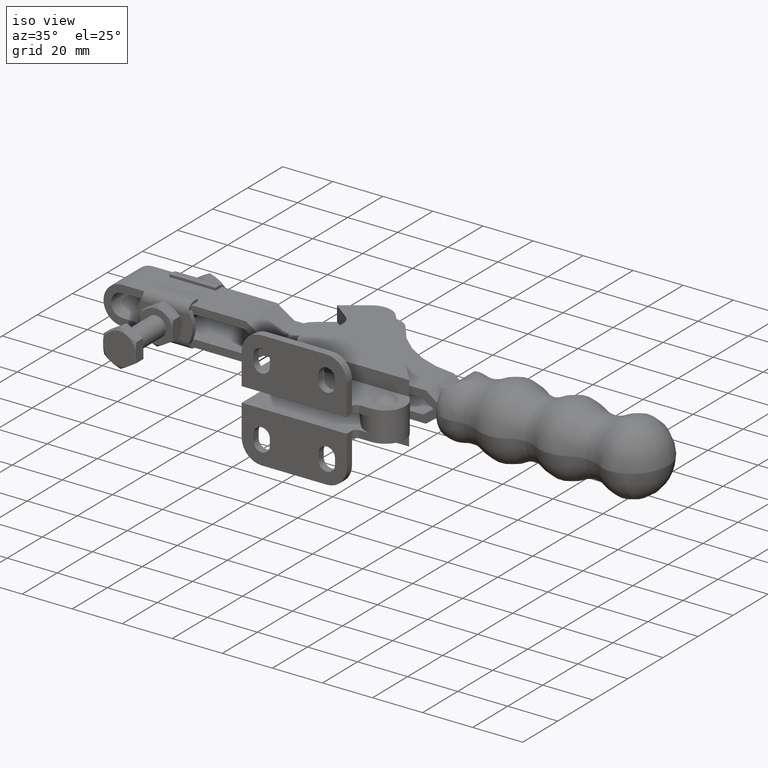
[diagram: clean part render]
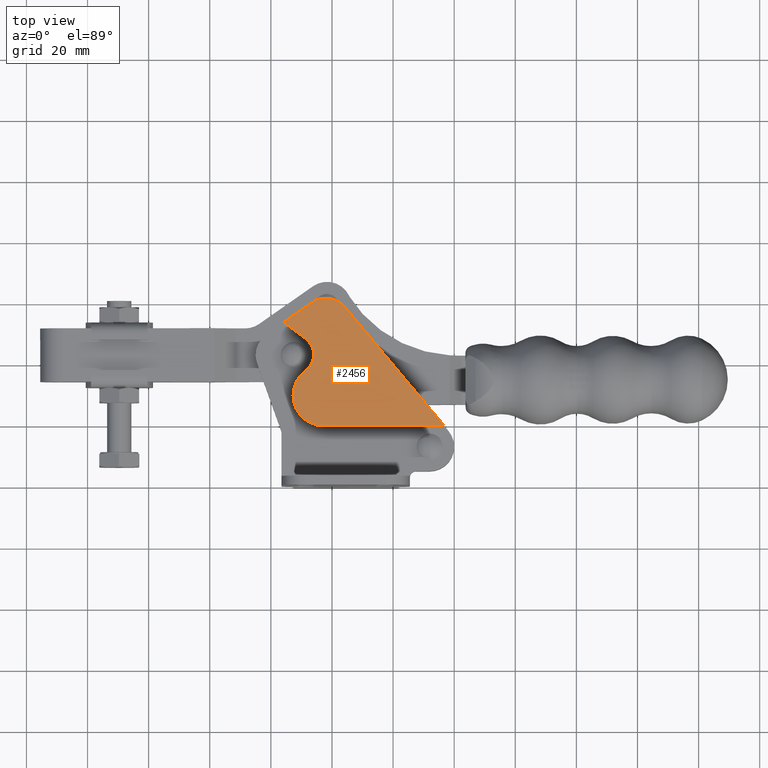
[diagram: tour spotlight — one face highlighted and labeled with its STEP entity id]
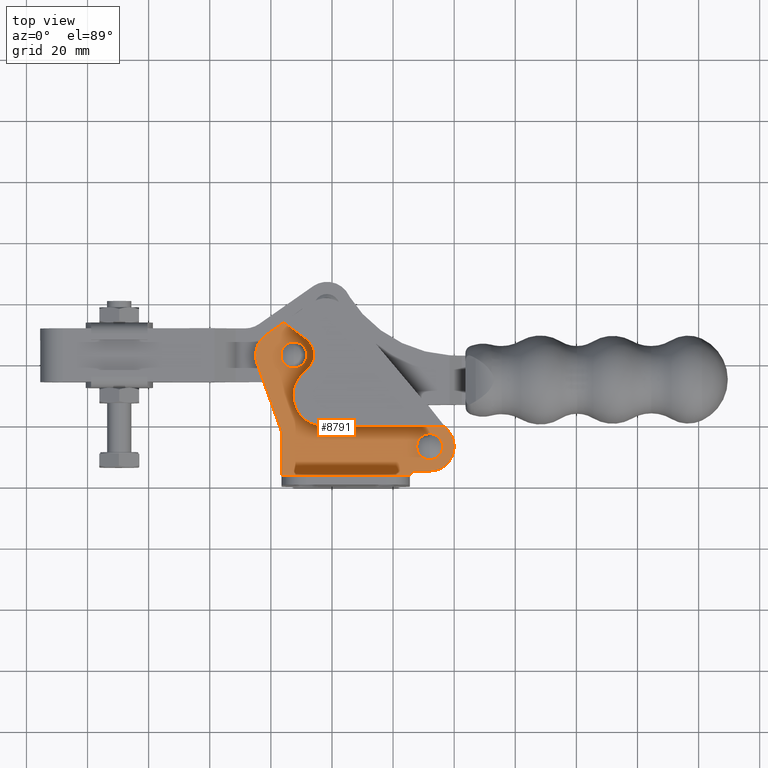
[diagram: tour spotlight — one face highlighted and labeled with its STEP entity id]
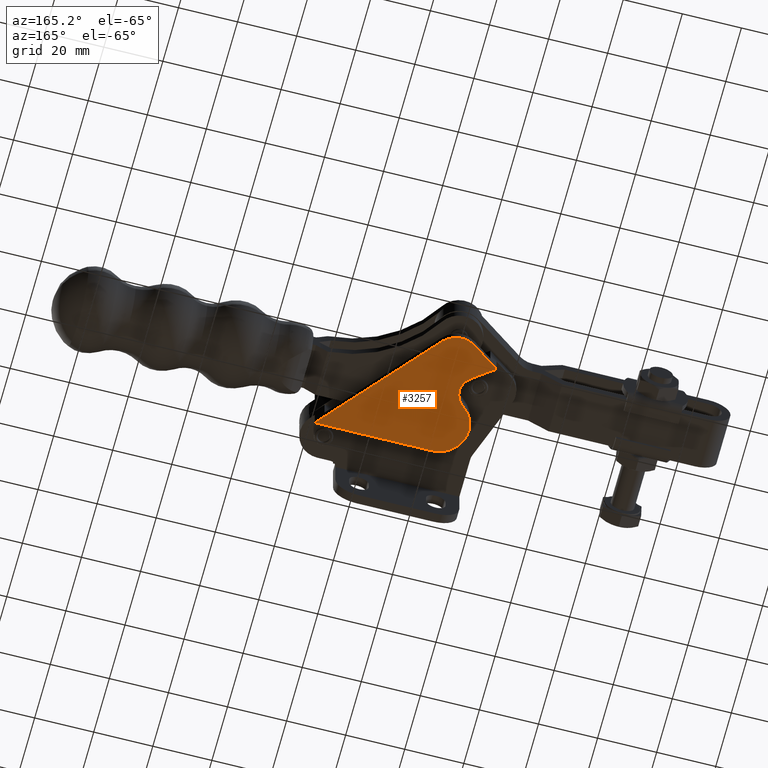
[diagram: tour spotlight — one face highlighted and labeled with its STEP entity id]
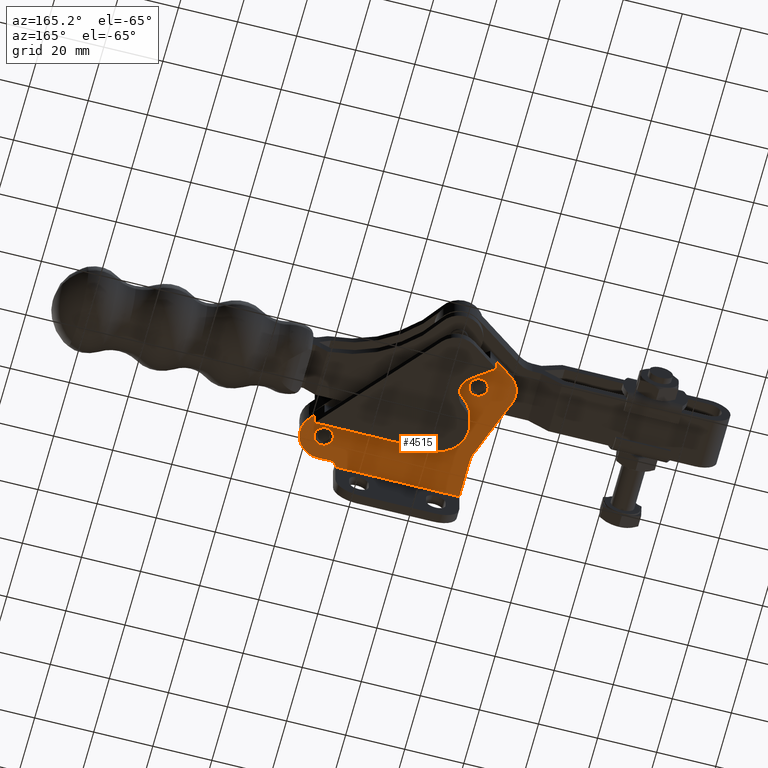
[diagram: tour spotlight — one face highlighted and labeled with its STEP entity id]
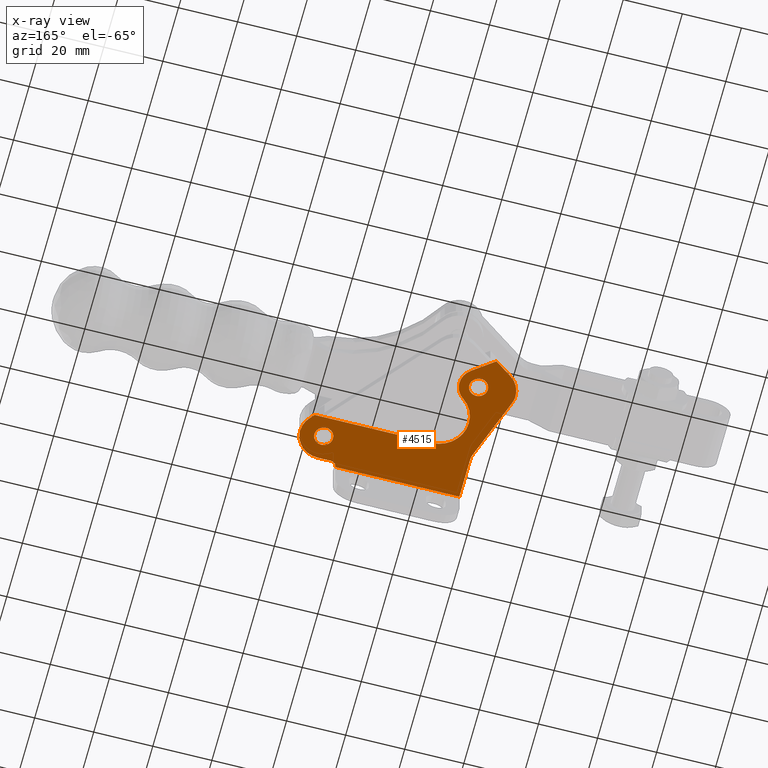
[diagram: x-ray of the same camera — body ghosted, this tour face saturated]
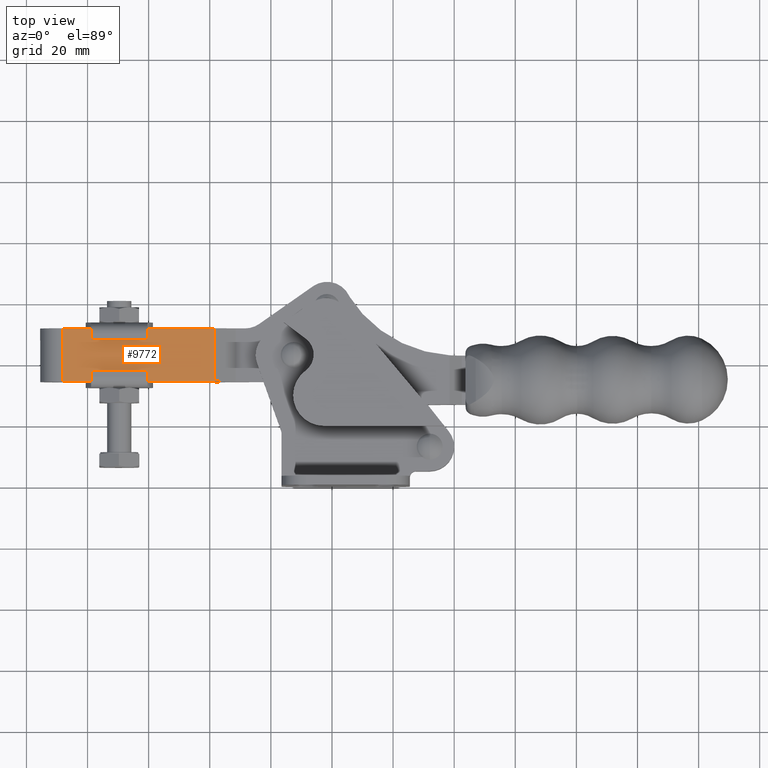
[diagram: tour spotlight — one face highlighted and labeled with its STEP entity id]
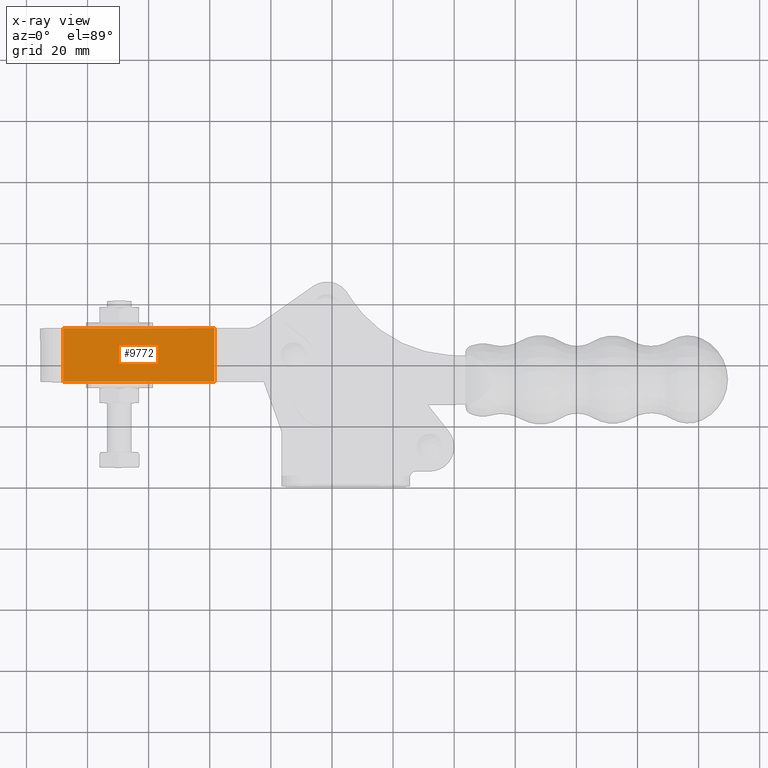
[diagram: x-ray of the same camera — body ghosted, this tour face saturated]
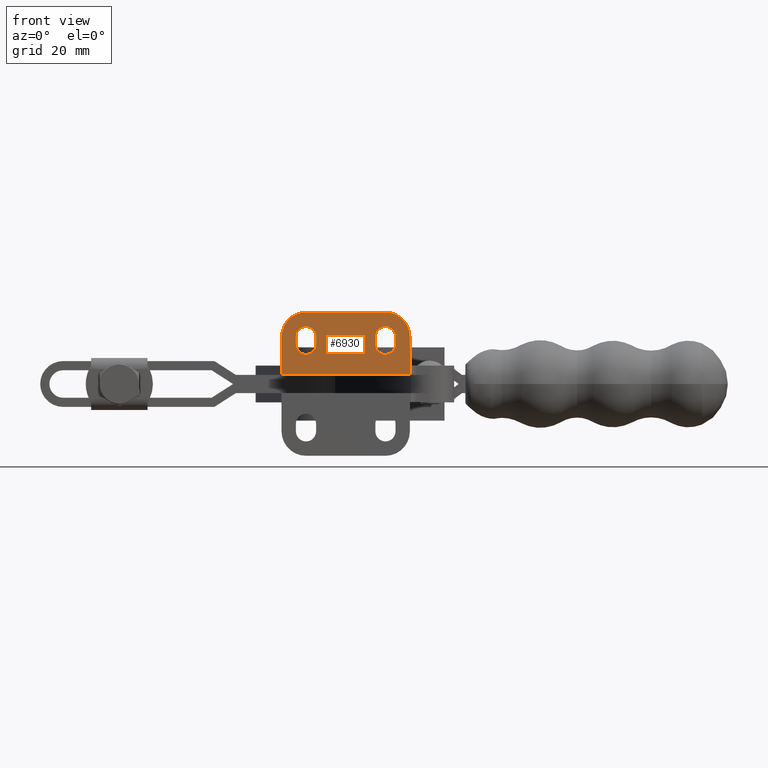
[diagram: tour spotlight — one face highlighted and labeled with its STEP entity id]
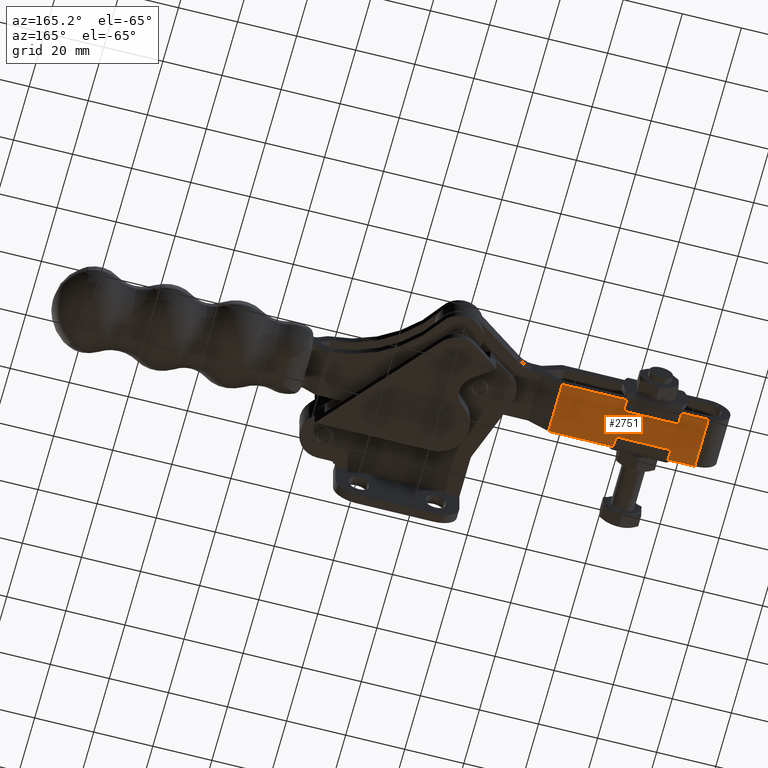
[diagram: tour spotlight — one face highlighted and labeled with its STEP entity id]
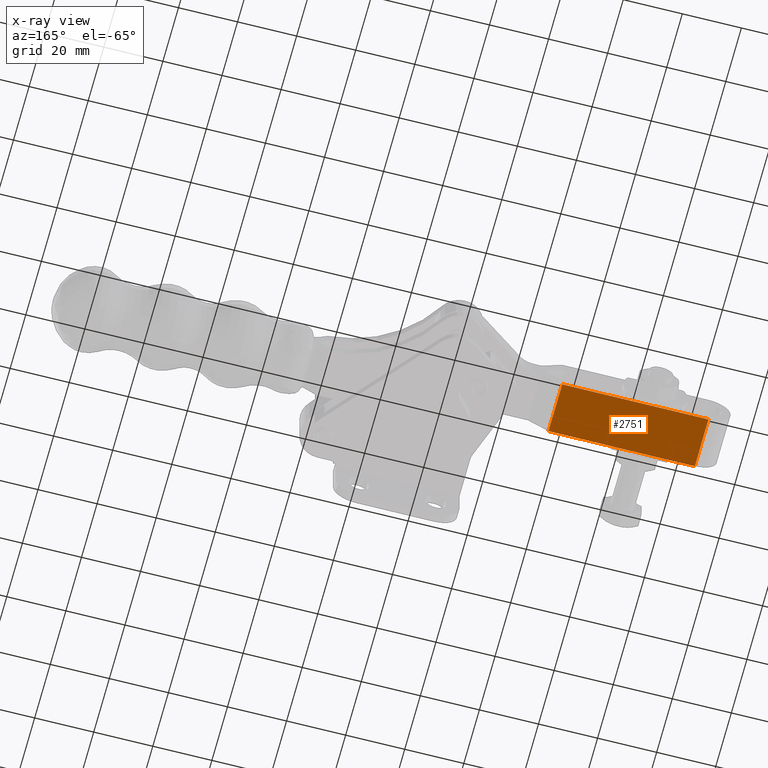
[diagram: x-ray of the same camera — body ghosted, this tour face saturated]
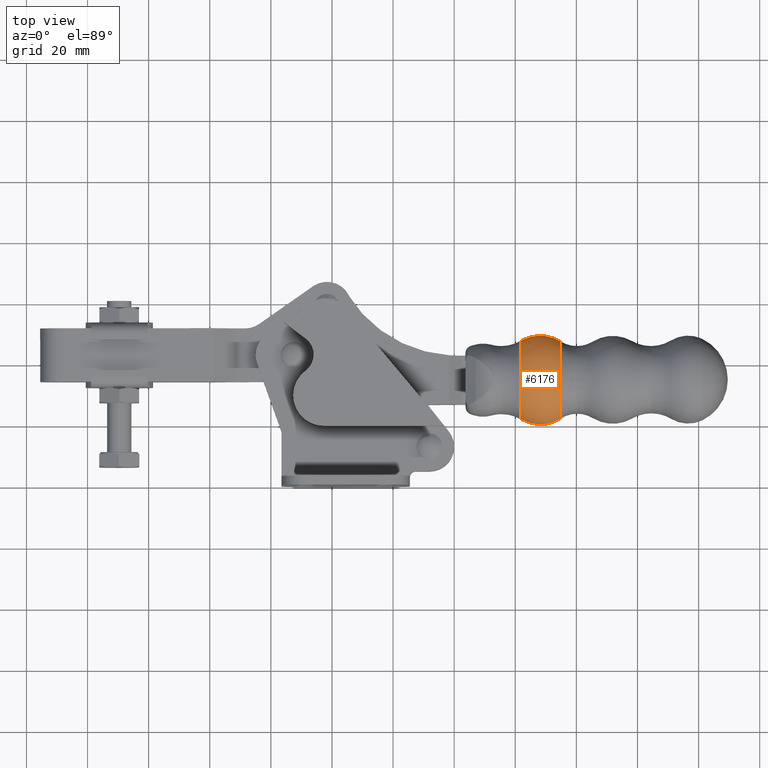
[diagram: tour spotlight — one face highlighted and labeled with its STEP entity id]
A machine part: a face-by-face anatomy tour. The part has 332 B-rep faces; the first image is the clean iso view, then the 8 largest visible faces are spotlighted one at a time (largest first), each with its STEP entity span.

Face 1 — top view, entity #2456. In plain terms, the highlighted planar face has unit normal (0, 0, 1).
Definition (entity closure, byte-faithful):
#92 = CARTESIAN_POINT ( 'NONE',  ( -48.58378610130778700, 48.18779998647656300, 9.000000000000000000 ) ) ;
#303 = DIRECTION ( 'NONE',  ( 0.0000000000000000000, 0.0000000000000000000, 1.000000000000000000 ) ) ;
#481 = AXIS2_PLACEMENT_3D ( 'NONE', #3767, #1152, #5874 ) ;
#557 = LINE ( 'NONE', #12066, #5366 ) ;
#584 = EDGE_CURVE ( 'NONE', #6053, #3826, #6062, .T. ) ;
#585 = LINE ( 'NONE', #1023, #7936 ) ;
#599 = DIRECTION ( 'NONE',  ( 1.000000000000000000, 3.508430769221403400E-016, -0.0000000000000000000 ) ) ;
#1023 = CARTESIAN_POINT ( 'NONE',  ( -35.87066996450977300, 58.64510652004862800, 9.000000000000000000 ) ) ;
#1115 = DIRECTION ( 'NONE',  ( 0.0000000000000000000, 0.0000000000000000000, 1.000000000000000000 ) ) ;
#1152 = DIRECTION ( 'NONE',  ( 0.0000000000000000000, 0.0000000000000000000, 1.000000000000000000 ) ) ;
#1410 = LINE ( 'NONE', #11649, #1699 ) ;
#1541 = ORIENTED_EDGE ( 'NONE', *, *, #3298, .T. ) ;
#1699 = VECTOR ( 'NONE', #10685, 1000.000000000000000 ) ;
#1833 = EDGE_CURVE ( 'NONE', #5587, #5710, #6848, .T. ) ;
#2066 = AXIS2_PLACEMENT_3D ( 'NONE', #2387, #3342, #7350 ) ;
#2250 = CARTESIAN_POINT ( 'NONE',  ( -42.73475550741349600, 19.69999999999998900, 9.000000000000000000 ) ) ;
#2387 = CARTESIAN_POINT ( 'NONE',  ( -52.50000000000059000, 42.99999999999998600, 9.000000000000000000 ) ) ;
#2444 = CIRCLE ( 'NONE', #4019, 8.002550080231083400 ) ;
#2456 = ADVANCED_FACE ( 'NONE', ( #11126 ), #5955, .T. ) ;
#2576 = EDGE_CURVE ( 'NONE', #8596, #6053, #1410, .T. ) ;
#2715 = VECTOR ( 'NONE', #2745, 1000.000000000000200 ) ;
#2745 = DIRECTION ( 'NONE',  ( -0.8191520442889974600, -0.5735764363510378300, -0.0000000000000000000 ) ) ;
#3046 = CARTESIAN_POINT ( 'NONE',  ( -52.73475550741350300, 29.69999999999999600, 9.000000000000000000 ) ) ;
#3298 = EDGE_CURVE ( 'NONE', #11305, #8596, #10338, .T. ) ;
#3342 = DIRECTION ( 'NONE',  ( -0.0000000000000000000, -0.0000000000000000000, -1.000000000000000000 ) ) ;
#3544 = CIRCLE ( 'NONE', #8498, 10.00000000000000200 ) ;
#3767 = CARTESIAN_POINT ( 'NONE',  ( -52.50000000000059000, 42.99999999999998600, 9.000000000000000000 ) ) ;
#3826 = VERTEX_POINT ( 'NONE', #11351 ) ;
#3868 = VERTEX_POINT ( 'NONE', #8556 ) ;
#3949 = DIRECTION ( 'NONE',  ( -0.6429333735452300600, 0.7659221090827379500, -0.0000000000000000000 ) ) ;
#3971 = EDGE_CURVE ( 'NONE', #7314, #3868, #585, .T. ) ;
#4019 = AXIS2_PLACEMENT_3D ( 'NONE', #6876, #1115, #7806 ) ;
#4710 = DIRECTION ( 'NONE',  ( 0.0000000000000000000, 0.0000000000000000000, 1.000000000000000000 ) ) ;
#4805 = ORIENTED_EDGE ( 'NONE', *, *, #5261, .T. ) ;
#5175 = ORIENTED_EDGE ( 'NONE', *, *, #2576, .T. ) ;
#5261 = EDGE_CURVE ( 'NONE', #5710, #7314, #557, .T. ) ;
#5366 = VECTOR ( 'NONE', #599, 1000.000000000000000 ) ;
#5587 = VERTEX_POINT ( 'NONE', #3046 ) ;
#5710 = VERTEX_POINT ( 'NONE', #2250 ) ;
#5874 = DIRECTION ( 'NONE',  ( 1.000000000000000000, 0.0000000000000000000, -0.0000000000000000000 ) ) ;
#5955 = PLANE ( 'NONE',  #481 ) ;
#6053 = VERTEX_POINT ( 'NONE', #92 ) ;
#6062 = CIRCLE ( 'NONE', #2066, 6.500000000000075500 ) ;
#6087 = CARTESIAN_POINT ( 'NONE',  ( -42.73475550741349600, 29.69999999999999600, 9.000000000000000000 ) ) ;
#6340 = CARTESIAN_POINT ( 'NONE',  ( -3.179214239331880500, 19.70000000000000300, 9.000000000000000000 ) ) ;
#6848 = CIRCLE ( 'NONE', #10409, 10.00000000000000200 ) ;
#6876 = CARTESIAN_POINT ( 'NONE',  ( -42.00000000000059000, 53.50000000000100200, 9.000000000000000000 ) ) ;
#6975 = ORIENTED_EDGE ( 'NONE', *, *, #7983, .T. ) ;
#7032 = DIRECTION ( 'NONE',  ( 1.000000000000000000, 0.0000000000000000000, 0.0000000000000000000 ) ) ;
#7314 = VERTEX_POINT ( 'NONE', #6340 ) ;
#7350 = DIRECTION ( 'NONE',  ( 1.000000000000000000, 0.0000000000000000000, 0.0000000000000000000 ) ) ;
#7806 = DIRECTION ( 'NONE',  ( 1.000000000000000000, 0.0000000000000000000, 0.0000000000000000000 ) ) ;
#7868 = ORIENTED_EDGE ( 'NONE', *, *, #1833, .T. ) ;
#7936 = VECTOR ( 'NONE', #3949, 1000.000000000000100 ) ;
#7974 = CARTESIAN_POINT ( 'NONE',  ( -46.59007415674025800, 60.05530525774738500, 9.000000000000000000 ) ) ;
#7983 = EDGE_CURVE ( 'NONE', #3826, #5587, #3544, .T. ) ;
#8002 = CARTESIAN_POINT ( 'NONE',  ( -55.78021040497713300, 53.62030257955775900, 9.000000000000000000 ) ) ;
#8498 = AXIS2_PLACEMENT_3D ( 'NONE', #6087, #303, #7032 ) ;
#8556 = CARTESIAN_POINT ( 'NONE',  ( -35.87066996450977300, 58.64510652004862800, 9.000000000000000000 ) ) ;
#8596 = VERTEX_POINT ( 'NONE', #8002 ) ;
#9055 = EDGE_LOOP ( 'NONE', ( #11949, #6975, #7868, #4805, #10092, #9394, #1541, #5175 ) ) ;
#9394 = ORIENTED_EDGE ( 'NONE', *, *, #9482, .T. ) ;
#9482 = EDGE_CURVE ( 'NONE', #3868, #11305, #2444, .T. ) ;
#10092 = ORIENTED_EDGE ( 'NONE', *, *, #3971, .T. ) ;
#10338 = LINE ( 'NONE', #10396, #2715 ) ;
#10396 = CARTESIAN_POINT ( 'NONE',  ( -55.78021040497713300, 53.62030257955775900, 9.000000000000000000 ) ) ;
#10409 = AXIS2_PLACEMENT_3D ( 'NONE', #10416, #4710, #11384 ) ;
#10416 = CARTESIAN_POINT ( 'NONE',  ( -42.73475550741349600, 29.69999999999999600, 9.000000000000000000 ) ) ;
#10685 = DIRECTION ( 'NONE',  ( 0.7981230748425401900, -0.6024944459527316100, -0.0000000000000000000 ) ) ;
#11126 = FACE_OUTER_BOUND ( 'NONE', #9055, .T. ) ;
#11305 = VERTEX_POINT ( 'NONE', #7974 ) ;
#11351 = CARTESIAN_POINT ( 'NONE',  ( -48.65308550292081000, 37.76060606060601500, 9.000000000000000000 ) ) ;
#11384 = DIRECTION ( 'NONE',  ( 1.000000000000000000, 0.0000000000000000000, 0.0000000000000000000 ) ) ;
#11649 = CARTESIAN_POINT ( 'NONE',  ( -48.58378610130778700, 48.18779998647656300, 9.000000000000000000 ) ) ;
#11949 = ORIENTED_EDGE ( 'NONE', *, *, #584, .T. ) ;
#12066 = CARTESIAN_POINT ( 'NONE',  ( -3.179214239331880500, 19.70000000000000300, 9.000000000000000000 ) ) ;

Face 2 — top view, entity #8791. In plain terms, the highlighted planar face has unit normal (0, 0, 1).
Definition (entity closure, byte-faithful):
#138 = AXIS2_PLACEMENT_3D ( 'NONE', #11652, #5959, #176 ) ;
#173 = VERTEX_POINT ( 'NONE', #4307 ) ;
#176 = DIRECTION ( 'NONE',  ( 1.000000000000000000, 0.0000000000000000000, 0.0000000000000000000 ) ) ;
#192 = ORIENTED_EDGE ( 'NONE', *, *, #3092, .T. ) ;
#322 = VERTEX_POINT ( 'NONE', #882 ) ;
#329 = EDGE_CURVE ( 'NONE', #4722, #3393, #5752, .T. ) ;
#388 = EDGE_LOOP ( 'NONE', ( #4221, #5017 ) ) ;
#538 = DIRECTION ( 'NONE',  ( 0.0000000000000000000, 0.0000000000000000000, 1.000000000000000000 ) ) ;
#579 = CARTESIAN_POINT ( 'NONE',  ( -14.50000000000026100, 3.249999999999998700, 3.000000000000000000 ) ) ;
#619 = CARTESIAN_POINT ( 'NONE',  ( -61.50000000000041200, 17.12714365397696200, 3.000000000000000000 ) ) ;
#719 = EDGE_LOOP ( 'NONE', ( #9383, #7075, #10528, #8961, #192, #2325, #9135, #11586, #1609, #8413, #1570, #8412, #7993, #8475, #6494, #11882, #10278 ) ) ;
#839 = AXIS2_PLACEMENT_3D ( 'NONE', #2477, #9169, #3428 ) ;
#882 = CARTESIAN_POINT ( 'NONE',  ( -56.50000000000025600, 3.249999999999993300, 3.000000000000000000 ) ) ;
#961 = LINE ( 'NONE', #4279, #5772 ) ;
#1038 = DIRECTION ( 'NONE',  ( -0.8191520442889975700, -0.5735764363510378300, -0.0000000000000000000 ) ) ;
#1056 = EDGE_CURVE ( 'NONE', #3393, #4579, #2277, .T. ) ;
#1058 = AXIS2_PLACEMENT_3D ( 'NONE', #6313, #538, #7258 ) ;
#1120 = FACE_BOUND ( 'NONE', #8456, .T. ) ;
#1168 = DIRECTION ( 'NONE',  ( -0.0000000000000000000, -0.0000000000000000000, -1.000000000000000000 ) ) ;
#1172 = CARTESIAN_POINT ( 'NONE',  ( -3.179214239331880500, 19.70000000000000300, 3.000000000000000000 ) ) ;
#1243 = LINE ( 'NONE', #10675, #6064 ) ;
#1540 = CARTESIAN_POINT ( 'NONE',  ( -12.50000000000025800, 4.999999999999997300, 3.000000000000000000 ) ) ;
#1570 = ORIENTED_EDGE ( 'NONE', *, *, #9539, .F. ) ;
#1575 = LINE ( 'NONE', #1172, #4111 ) ;
#1605 = DIRECTION ( 'NONE',  ( 1.000000000000000000, 0.0000000000000000000, -0.0000000000000000000 ) ) ;
#1609 = ORIENTED_EDGE ( 'NONE', *, *, #3723, .F. ) ;
#1903 = DIRECTION ( 'NONE',  ( 0.0000000000000000000, 0.0000000000000000000, 1.000000000000000000 ) ) ;
#1908 = VECTOR ( 'NONE', #8648, 1000.000000000000000 ) ;
#2084 = CIRCLE ( 'NONE', #3904, 4.250000000000000000 ) ;
#2199 = EDGE_CURVE ( 'NONE', #3627, #2605, #961, .T. ) ;
#2202 = DIRECTION ( 'NONE',  ( 0.0000000000000000000, 0.0000000000000000000, 1.000000000000000000 ) ) ;
#2277 = LINE ( 'NONE', #10219, #12133 ) ;
#2325 = ORIENTED_EDGE ( 'NONE', *, *, #8981, .T. ) ;
#2477 = CARTESIAN_POINT ( 'NONE',  ( -61.50000000000041200, 17.12714365397696200, 3.000000000000000000 ) ) ;
#2605 = VERTEX_POINT ( 'NONE', #3131 ) ;
#2616 = AXIS2_PLACEMENT_3D ( 'NONE', #7928, #2202, #8891 ) ;
#2767 = VERTEX_POINT ( 'NONE', #6806 ) ;
#2795 = EDGE_CURVE ( 'NONE', #8761, #8874, #10804, .T. ) ;
#2806 = DIRECTION ( 'NONE',  ( 1.000000000000000000, 3.508430769221403400E-016, -0.0000000000000000000 ) ) ;
#2834 = VECTOR ( 'NONE', #2806, 1000.000000000000000 ) ;
#2870 = EDGE_CURVE ( 'NONE', #8874, #3627, #6509, .T. ) ;
#3049 = AXIS2_PLACEMENT_3D ( 'NONE', #619, #7337, #1605 ) ;
#3092 = EDGE_CURVE ( 'NONE', #2605, #2767, #6358, .T. ) ;
#3131 = CARTESIAN_POINT ( 'NONE',  ( -8.000000000000005300, 4.999999999999997300, 3.000000000000000000 ) ) ;
#3138 = EDGE_CURVE ( 'NONE', #5208, #4722, #9887, .T. ) ;
#3270 = CARTESIAN_POINT ( 'NONE',  ( -56.79573860836407600, 18.82122888180978000, 3.000000000000000000 ) ) ;
#3354 = CARTESIAN_POINT ( 'NONE',  ( -52.50000000000059000, 42.99999999999998600, 3.000000000000000000 ) ) ;
#3393 = VERTEX_POINT ( 'NONE', #11566 ) ;
#3418 = LINE ( 'NONE', #7741, #8821 ) ;
#3428 = DIRECTION ( 'NONE',  ( 1.000000000000000000, 0.0000000000000000000, 0.0000000000000000000 ) ) ;
#3459 = VERTEX_POINT ( 'NONE', #10726 ) ;
#3464 = CARTESIAN_POINT ( 'NONE',  ( -65.00000000000055400, 43.00000000000102300, 3.000000000000000000 ) ) ;
#3547 = DIRECTION ( 'NONE',  ( 0.3388170455665536200, -0.9408522783272366100, -0.0000000000000000000 ) ) ;
#3627 = VERTEX_POINT ( 'NONE', #1540 ) ;
#3676 = FACE_BOUND ( 'NONE', #388, .T. ) ;
#3723 = EDGE_CURVE ( 'NONE', #5609, #6916, #7206, .T. ) ;
#3774 = CARTESIAN_POINT ( 'NONE',  ( -57.00000000000053300, 43.00000000000102300, 3.000000000000000000 ) ) ;
#3793 = CIRCLE ( 'NONE', #5185, 4.250000000000003600 ) ;
#3870 = AXIS2_PLACEMENT_3D ( 'NONE', #5040, #11707, #6020 ) ;
#3904 = AXIS2_PLACEMENT_3D ( 'NONE', #4122, #10792, #5089 ) ;
#3967 = FACE_OUTER_BOUND ( 'NONE', #719, .T. ) ;
#4103 = ORIENTED_EDGE ( 'NONE', *, *, #11804, .F. ) ;
#4111 = VECTOR ( 'NONE', #7870, 1000.000000000000000 ) ;
#4122 = CARTESIAN_POINT ( 'NONE',  ( -8.000000000000007100, 12.99999999999999800, 3.000000000000000000 ) ) ;
#4221 = ORIENTED_EDGE ( 'NONE', *, *, #10271, .F. ) ;
#4279 = CARTESIAN_POINT ( 'NONE',  ( -8.000000000000005300, 4.999999999999997300, 3.000000000000000000 ) ) ;
#4307 = CARTESIAN_POINT ( 'NONE',  ( -55.78021040497713300, 53.62030257955775900, 3.000000000000000900 ) ) ;
#4318 = DIRECTION ( 'NONE',  ( 1.000000000000000000, 0.0000000000000000000, 0.0000000000000000000 ) ) ;
#4460 = LINE ( 'NONE', #11516, #1908 ) ;
#4479 = CARTESIAN_POINT ( 'NONE',  ( -57.00000000000053300, 43.00000000000102300, 3.000000000000000000 ) ) ;
#4579 = VERTEX_POINT ( 'NONE', #3270 ) ;
#4590 = DIRECTION ( 'NONE',  ( 0.0000000000000000000, 0.0000000000000000000, 1.000000000000000000 ) ) ;
#4638 = CIRCLE ( 'NONE', #2616, 4.250000000000000000 ) ;
#4660 = EDGE_CURVE ( 'NONE', #4579, #12275, #8964, .T. ) ;
#4722 = VERTEX_POINT ( 'NONE', #3464 ) ;
#4741 = DIRECTION ( 'NONE',  ( 1.000000000000000000, 0.0000000000000000000, 0.0000000000000000000 ) ) ;
#4872 = VERTEX_POINT ( 'NONE', #6633 ) ;
#4919 = DIRECTION ( 'NONE',  ( -4.051401707193598300E-016, -1.000000000000000000, -0.0000000000000000000 ) ) ;
#4968 = EDGE_CURVE ( 'NONE', #173, #5208, #3418, .T. ) ;
#5017 = ORIENTED_EDGE ( 'NONE', *, *, #7476, .F. ) ;
#5040 = CARTESIAN_POINT ( 'NONE',  ( -12.50000000000025800, 2.999999999999994700, 3.000000000000000000 ) ) ;
#5048 = VERTEX_POINT ( 'NONE', #6012 ) ;
#5089 = DIRECTION ( 'NONE',  ( 1.000000000000000000, 0.0000000000000000000, 0.0000000000000000000 ) ) ;
#5185 = AXIS2_PLACEMENT_3D ( 'NONE', #3354, #10028, #4318 ) ;
#5208 = VERTEX_POINT ( 'NONE', #5269 ) ;
#5269 = CARTESIAN_POINT ( 'NONE',  ( -61.58861149080886600, 49.55321635431300100, 3.000000000000000000 ) ) ;
#5445 = DIRECTION ( 'NONE',  ( 1.000000000000000000, 0.0000000000000000000, 0.0000000000000000000 ) ) ;
#5543 = CARTESIAN_POINT ( 'NONE',  ( -14.50000000000026100, 2.999999999999998200, 3.000000000000000000 ) ) ;
#5583 = CARTESIAN_POINT ( 'NONE',  ( -52.73475550741350300, 29.69999999999999600, 3.000000000000000000 ) ) ;
#5609 = VERTEX_POINT ( 'NONE', #11699 ) ;
#5705 = CARTESIAN_POINT ( 'NONE',  ( -42.73475550741349600, 19.69999999999998900, 3.000000000000000000 ) ) ;
#5752 = CIRCLE ( 'NONE', #7053, 8.000000000000014200 ) ;
#5772 = VECTOR ( 'NONE', #10959, 1000.000000000000000 ) ;
#5846 = DIRECTION ( 'NONE',  ( 1.239088197126291600E-016, -1.000000000000000000, -2.465190328815661900E-032 ) ) ;
#5959 = DIRECTION ( 'NONE',  ( 0.0000000000000000000, 0.0000000000000000000, 1.000000000000000000 ) ) ;
#5977 = CIRCLE ( 'NONE', #138, 10.00000000000000200 ) ;
#6012 = CARTESIAN_POINT ( 'NONE',  ( -3.179214239331880500, 19.70000000000000300, 3.000000000000000000 ) ) ;
#6020 = DIRECTION ( 'NONE',  ( 1.000000000000000000, 0.0000000000000000000, 0.0000000000000000000 ) ) ;
#6064 = VECTOR ( 'NONE', #6946, 1000.000000000000000 ) ;
#6255 = CARTESIAN_POINT ( 'NONE',  ( -8.000000000000007100, 8.749999999999998200, 3.000000000000000400 ) ) ;
#6313 = CARTESIAN_POINT ( 'NONE',  ( -8.000000000000003600, 13.00000000000000000, 3.000000000000000000 ) ) ;
#6358 = CIRCLE ( 'NONE', #1058, 8.000000000000001800 ) ;
#6494 = ORIENTED_EDGE ( 'NONE', *, *, #1056, .T. ) ;
#6509 = CIRCLE ( 'NONE', #3870, 2.000000000000003600 ) ;
#6633 = CARTESIAN_POINT ( 'NONE',  ( -8.000000000000007100, 17.24999999999999600, 3.000000000000000400 ) ) ;
#6725 = VECTOR ( 'NONE', #4919, 1000.000000000000000 ) ;
#6806 = CARTESIAN_POINT ( 'NONE',  ( -1.872623127338097100, 18.14346698836184000, 3.000000000000000000 ) ) ;
#6916 = VERTEX_POINT ( 'NONE', #5583 ) ;
#6921 = CARTESIAN_POINT ( 'NONE',  ( -52.50000000000059000, 42.99999999999998600, 3.000000000000000000 ) ) ;
#6946 = DIRECTION ( 'NONE',  ( 0.7981230748425401900, -0.6024944459527316100, 0.0000000000000000000 ) ) ;
#7053 = AXIS2_PLACEMENT_3D ( 'NONE', #3774, #10446, #4741 ) ;
#7075 = ORIENTED_EDGE ( 'NONE', *, *, #2795, .T. ) ;
#7110 = EDGE_CURVE ( 'NONE', #7270, #5609, #11641, .T. ) ;
#7191 = AXIS2_PLACEMENT_3D ( 'NONE', #10299, #4590, #11270 ) ;
#7206 = CIRCLE ( 'NONE', #7191, 10.00000000000000200 ) ;
#7258 = DIRECTION ( 'NONE',  ( 1.000000000000000000, 0.0000000000000000000, 0.0000000000000000000 ) ) ;
#7270 = VERTEX_POINT ( 'NONE', #9081 ) ;
#7318 = CIRCLE ( 'NONE', #7688, 4.250000000000003600 ) ;
#7337 = DIRECTION ( 'NONE',  ( 0.0000000000000000000, 0.0000000000000000000, 1.000000000000000000 ) ) ;
#7476 = EDGE_CURVE ( 'NONE', #3459, #10385, #7318, .T. ) ;
#7478 = AXIS2_PLACEMENT_3D ( 'NONE', #4479, #11161, #5445 ) ;
#7568 = EDGE_CURVE ( 'NONE', #8761, #322, #4460, .T. ) ;
#7603 = EDGE_CURVE ( 'NONE', #12275, #322, #9250, .T. ) ;
#7639 = CARTESIAN_POINT ( 'NONE',  ( -52.50000000000059000, 42.99999999999998600, 3.000000000000000000 ) ) ;
#7688 = AXIS2_PLACEMENT_3D ( 'NONE', #7639, #1903, #8608 ) ;
#7741 = CARTESIAN_POINT ( 'NONE',  ( -55.78021040497713300, 53.62030257955775900, 3.000000000000000000 ) ) ;
#7865 = DIRECTION ( 'NONE',  ( 1.000000000000000000, 3.202566417187914500E-015, 0.0000000000000000000 ) ) ;
#7870 = DIRECTION ( 'NONE',  ( -0.6429333735452295000, 0.7659221090827385000, -0.0000000000000000000 ) ) ;
#7928 = CARTESIAN_POINT ( 'NONE',  ( -8.000000000000007100, 12.99999999999999800, 3.000000000000000000 ) ) ;
#7935 = LINE ( 'NONE', #9504, #2834 ) ;
#7950 = EDGE_CURVE ( 'NONE', #6916, #10527, #5977, .T. ) ;
#7993 = ORIENTED_EDGE ( 'NONE', *, *, #3138, .T. ) ;
#8412 = ORIENTED_EDGE ( 'NONE', *, *, #4968, .T. ) ;
#8413 = ORIENTED_EDGE ( 'NONE', *, *, #7110, .F. ) ;
#8456 = EDGE_LOOP ( 'NONE', ( #8695, #4103 ) ) ;
#8475 = ORIENTED_EDGE ( 'NONE', *, *, #329, .T. ) ;
#8608 = DIRECTION ( 'NONE',  ( 1.000000000000000000, 0.0000000000000000000, 0.0000000000000000000 ) ) ;
#8648 = DIRECTION ( 'NONE',  ( -1.000000000000000000, -1.239088197126291100E-016, 0.0000000000000000000 ) ) ;
#8695 = ORIENTED_EDGE ( 'NONE', *, *, #11802, .F. ) ;
#8715 = CARTESIAN_POINT ( 'NONE',  ( -14.50000000000026100, 3.249999999999998700, 3.000000000000000000 ) ) ;
#8761 = VERTEX_POINT ( 'NONE', #579 ) ;
#8791 = ADVANCED_FACE ( 'NONE', ( #3676, #1120, #3967 ), #11082, .T. ) ;
#8821 = VECTOR ( 'NONE', #1038, 1000.000000000000000 ) ;
#8874 = VERTEX_POINT ( 'NONE', #5543 ) ;
#8891 = DIRECTION ( 'NONE',  ( 1.000000000000000000, 0.0000000000000000000, 0.0000000000000000000 ) ) ;
#8961 = ORIENTED_EDGE ( 'NONE', *, *, #2199, .T. ) ;
#8964 = CIRCLE ( 'NONE', #839, 5.000000000000164300 ) ;
#8981 = EDGE_CURVE ( 'NONE', #2767, #5048, #1575, .T. ) ;
#9081 = CARTESIAN_POINT ( 'NONE',  ( -48.58378610130778700, 48.18779998647656300, 3.000000000000000000 ) ) ;
#9135 = ORIENTED_EDGE ( 'NONE', *, *, #12203, .F. ) ;
#9169 = DIRECTION ( 'NONE',  ( -0.0000000000000000000, -0.0000000000000000000, -1.000000000000000000 ) ) ;
#9250 = LINE ( 'NONE', #11603, #6725 ) ;
#9383 = ORIENTED_EDGE ( 'NONE', *, *, #7568, .F. ) ;
#9504 = CARTESIAN_POINT ( 'NONE',  ( -3.179214239331880500, 19.70000000000000300, 3.000000000000000000 ) ) ;
#9539 = EDGE_CURVE ( 'NONE', #173, #7270, #1243, .T. ) ;
#9681 = AXIS2_PLACEMENT_3D ( 'NONE', #6921, #1168, #7865 ) ;
#9691 = VERTEX_POINT ( 'NONE', #6255 ) ;
#9887 = CIRCLE ( 'NONE', #7478, 8.000000000000014200 ) ;
#10028 = DIRECTION ( 'NONE',  ( 0.0000000000000000000, 0.0000000000000000000, 1.000000000000000000 ) ) ;
#10154 = CARTESIAN_POINT ( 'NONE',  ( -52.50000000000059000, 47.24999999999998600, 3.000000000000000400 ) ) ;
#10219 = CARTESIAN_POINT ( 'NONE',  ( -56.79573860836407600, 18.82122888180978000, 3.000000000000000000 ) ) ;
#10271 = EDGE_CURVE ( 'NONE', #10385, #3459, #3793, .T. ) ;
#10278 = ORIENTED_EDGE ( 'NONE', *, *, #7603, .T. ) ;
#10299 = CARTESIAN_POINT ( 'NONE',  ( -42.73475550741349600, 29.69999999999999600, 3.000000000000000000 ) ) ;
#10385 = VERTEX_POINT ( 'NONE', #10154 ) ;
#10446 = DIRECTION ( 'NONE',  ( 0.0000000000000000000, 0.0000000000000000000, 1.000000000000000000 ) ) ;
#10505 = VECTOR ( 'NONE', #5846, 1000.000000000000000 ) ;
#10527 = VERTEX_POINT ( 'NONE', #5705 ) ;
#10528 = ORIENTED_EDGE ( 'NONE', *, *, #2870, .T. ) ;
#10572 = CARTESIAN_POINT ( 'NONE',  ( -56.50000000000024900, 17.12714365397696200, 3.000000000000000000 ) ) ;
#10675 = CARTESIAN_POINT ( 'NONE',  ( -48.58378610130778700, 48.18779998647656300, 3.000000000000000000 ) ) ;
#10726 = CARTESIAN_POINT ( 'NONE',  ( -52.50000000000059000, 38.74999999999997900, 3.000000000000000400 ) ) ;
#10792 = DIRECTION ( 'NONE',  ( 0.0000000000000000000, 0.0000000000000000000, 1.000000000000000000 ) ) ;
#10804 = LINE ( 'NONE', #8715, #10505 ) ;
#10959 = DIRECTION ( 'NONE',  ( 1.000000000000000000, -0.0000000000000000000, -0.0000000000000000000 ) ) ;
#11082 = PLANE ( 'NONE',  #3049 ) ;
#11161 = DIRECTION ( 'NONE',  ( 0.0000000000000000000, 0.0000000000000000000, 1.000000000000000000 ) ) ;
#11270 = DIRECTION ( 'NONE',  ( 1.000000000000000000, 0.0000000000000000000, 0.0000000000000000000 ) ) ;
#11516 = CARTESIAN_POINT ( 'NONE',  ( -14.50000000000026100, 3.249999999999998700, 3.000000000000000000 ) ) ;
#11566 = CARTESIAN_POINT ( 'NONE',  ( -64.52681822661844500, 40.28946363546860000, 3.000000000000000000 ) ) ;
#11586 = ORIENTED_EDGE ( 'NONE', *, *, #7950, .F. ) ;
#11603 = CARTESIAN_POINT ( 'NONE',  ( -56.50000000000025600, -5.204170427930421300E-015, 3.000000000000000000 ) ) ;
#11641 = CIRCLE ( 'NONE', #9681, 6.500000000000075500 ) ;
#11652 = CARTESIAN_POINT ( 'NONE',  ( -42.73475550741349600, 29.69999999999999600, 3.000000000000000000 ) ) ;
#11699 = CARTESIAN_POINT ( 'NONE',  ( -48.65308550292081000, 37.76060606060601500, 3.000000000000000000 ) ) ;
#11707 = DIRECTION ( 'NONE',  ( -0.0000000000000000000, -0.0000000000000000000, -1.000000000000000000 ) ) ;
#11802 = EDGE_CURVE ( 'NONE', #4872, #9691, #4638, .T. ) ;
#11804 = EDGE_CURVE ( 'NONE', #9691, #4872, #2084, .T. ) ;
#11882 = ORIENTED_EDGE ( 'NONE', *, *, #4660, .T. ) ;
#12133 = VECTOR ( 'NONE', #3547, 1000.000000000000000 ) ;
#12203 = EDGE_CURVE ( 'NONE', #10527, #5048, #7935, .T. ) ;
#12275 = VERTEX_POINT ( 'NONE', #10572 ) ;

Face 3 — auxiliary view, entity #3257. In plain terms, the highlighted planar face has unit normal (-0, -0, -1).
Definition (entity closure, byte-faithful):
#241 = DIRECTION ( 'NONE',  ( 1.000000000000000000, 0.0000000000000000000, -6.938893903907227400E-016 ) ) ;
#392 = CARTESIAN_POINT ( 'NONE',  ( -52.50000000000059700, 42.99999999999998600, -15.00100000000048100 ) ) ;
#1165 = VECTOR ( 'NONE', #3126, 1000.000000000000000 ) ;
#1203 = CARTESIAN_POINT ( 'NONE',  ( -48.58378610130779400, 48.18779998647656300, -15.00100000000048600 ) ) ;
#1360 = DIRECTION ( 'NONE',  ( -0.8191520442889974600, -0.5735764363510378300, 6.688712815393437500E-016 ) ) ;
#1372 = DIRECTION ( 'NONE',  ( 1.000000000000000000, 0.0000000000000000000, -8.006416042969778500E-016 ) ) ;
#1631 = AXIS2_PLACEMENT_3D ( 'NONE', #9353, #3623, #10294 ) ;
#1937 = CARTESIAN_POINT ( 'NONE',  ( -46.59007415674026500, 60.05530525774738500, -15.00100000000049000 ) ) ;
#1946 = EDGE_CURVE ( 'NONE', #8670, #10130, #5329, .T. ) ;
#2229 = DIRECTION ( 'NONE',  ( 6.779171240880906000E-016, 1.979755029799889600E-016, 1.000000000000000000 ) ) ;
#2353 = AXIS2_PLACEMENT_3D ( 'NONE', #2473, #9168, #3427 ) ;
#2416 = AXIS2_PLACEMENT_3D ( 'NONE', #3179, #2229, #241 ) ;
#2473 = CARTESIAN_POINT ( 'NONE',  ( -42.00000000000059700, 53.50000000000100200, -15.00100000000049100 ) ) ;
#2505 = EDGE_CURVE ( 'NONE', #8115, #10068, #7992, .T. ) ;
#2629 = VERTEX_POINT ( 'NONE', #11639 ) ;
#2708 = DIRECTION ( 'NONE',  ( 1.000000000000000000, -6.710549181004365900E-032, -6.779171240880906000E-016 ) ) ;
#3107 = EDGE_CURVE ( 'NONE', #10130, #3928, #8877, .T. ) ;
#3126 = DIRECTION ( 'NONE',  ( 1.000000000000000000, 3.508430769221402900E-016, -6.779171240880907000E-016 ) ) ;
#3179 = CARTESIAN_POINT ( 'NONE',  ( -42.73475550741350300, 29.69999999999999200, -15.00100000000048600 ) ) ;
#3192 = ORIENTED_EDGE ( 'NONE', *, *, #7156, .F. ) ;
#3227 = LINE ( 'NONE', #8048, #5183 ) ;
#3257 = ADVANCED_FACE ( 'NONE', ( #5892 ), #11290, .T. ) ;
#3385 = AXIS2_PLACEMENT_3D ( 'NONE', #7486, #8446, #2708 ) ;
#3427 = DIRECTION ( 'NONE',  ( 1.000000000000000000, 0.0000000000000000000, -6.503140093788878800E-016 ) ) ;
#3494 = VERTEX_POINT ( 'NONE', #1203 ) ;
#3623 = DIRECTION ( 'NONE',  ( 6.779171240880906000E-016, 1.979755029799889600E-016, 1.000000000000000000 ) ) ;
#3720 = LINE ( 'NONE', #7906, #1165 ) ;
#3928 = VERTEX_POINT ( 'NONE', #1937 ) ;
#4055 = CIRCLE ( 'NONE', #8554, 6.500000000000081700 ) ;
#4315 = CARTESIAN_POINT ( 'NONE',  ( -3.179214239331888500, 19.69999999999999900, -15.00100000000051100 ) ) ;
#4378 = VERTEX_POINT ( 'NONE', #11540 ) ;
#4533 = ORIENTED_EDGE ( 'NONE', *, *, #2505, .F. ) ;
#4681 = DIRECTION ( 'NONE',  ( 0.7981230748425401900, -0.6024944459527316100, -4.217821585854569600E-016 ) ) ;
#5183 = VECTOR ( 'NONE', #1360, 1000.000000000000200 ) ;
#5302 = CARTESIAN_POINT ( 'NONE',  ( -48.65308550292081700, 37.76060606060601500, -15.00100000000048300 ) ) ;
#5329 = LINE ( 'NONE', #7594, #10086 ) ;
#5604 = ORIENTED_EDGE ( 'NONE', *, *, #8614, .F. ) ;
#5892 = FACE_OUTER_BOUND ( 'NONE', #10379, .T. ) ;
#6168 = EDGE_CURVE ( 'NONE', #3494, #8115, #4055, .T. ) ;
#6189 = VECTOR ( 'NONE', #4681, 1000.000000000000000 ) ;
#6233 = ORIENTED_EDGE ( 'NONE', *, *, #6168, .F. ) ;
#6767 = CARTESIAN_POINT ( 'NONE',  ( -52.73475550741351000, 29.69999999999999200, -15.00100000000047900 ) ) ;
#7120 = DIRECTION ( 'NONE',  ( -6.779171240880906000E-016, -1.979755029799889600E-016, -1.000000000000000000 ) ) ;
#7156 = EDGE_CURVE ( 'NONE', #4378, #8670, #3720, .T. ) ;
#7218 = ORIENTED_EDGE ( 'NONE', *, *, #1946, .F. ) ;
#7235 = CIRCLE ( 'NONE', #1631, 10.00000000000000200 ) ;
#7316 = ORIENTED_EDGE ( 'NONE', *, *, #9840, .F. ) ;
#7486 = CARTESIAN_POINT ( 'NONE',  ( -52.50000000000059700, 42.99999999999998600, -15.00100000000048100 ) ) ;
#7594 = CARTESIAN_POINT ( 'NONE',  ( -35.87066996450978000, 58.64510652004862800, -15.00100000000049700 ) ) ;
#7906 = CARTESIAN_POINT ( 'NONE',  ( -3.179214239331888500, 19.69999999999999900, -15.00100000000051100 ) ) ;
#7992 = CIRCLE ( 'NONE', #2416, 10.00000000000000200 ) ;
#8023 = ORIENTED_EDGE ( 'NONE', *, *, #3107, .F. ) ;
#8048 = CARTESIAN_POINT ( 'NONE',  ( -55.78021040497714000, 53.62030257955775900, -15.00100000000048100 ) ) ;
#8115 = VERTEX_POINT ( 'NONE', #5302 ) ;
#8446 = DIRECTION ( 'NONE',  ( -6.779171240880906000E-016, -1.979755029799889600E-016, -1.000000000000000000 ) ) ;
#8554 = AXIS2_PLACEMENT_3D ( 'NONE', #392, #7120, #1372 ) ;
#8614 = EDGE_CURVE ( 'NONE', #3928, #2629, #3227, .T. ) ;
#8670 = VERTEX_POINT ( 'NONE', #4315 ) ;
#8704 = LINE ( 'NONE', #10393, #6189 ) ;
#8877 = CIRCLE ( 'NONE', #2353, 8.002550080231090500 ) ;
#9168 = DIRECTION ( 'NONE',  ( 6.779171240880906000E-016, 1.979755029799889600E-016, 1.000000000000000000 ) ) ;
#9353 = CARTESIAN_POINT ( 'NONE',  ( -42.73475550741350300, 29.69999999999999200, -15.00100000000048600 ) ) ;
#9553 = ORIENTED_EDGE ( 'NONE', *, *, #11043, .F. ) ;
#9752 = CARTESIAN_POINT ( 'NONE',  ( -35.87066996450978000, 58.64510652004862800, -15.00100000000049700 ) ) ;
#9840 = EDGE_CURVE ( 'NONE', #10068, #4378, #7235, .T. ) ;
#10068 = VERTEX_POINT ( 'NONE', #6767 ) ;
#10086 = VECTOR ( 'NONE', #10578, 1000.000000000000100 ) ;
#10130 = VERTEX_POINT ( 'NONE', #9752 ) ;
#10294 = DIRECTION ( 'NONE',  ( 1.000000000000000000, 0.0000000000000000000, -6.938893903907227400E-016 ) ) ;
#10379 = EDGE_LOOP ( 'NONE', ( #6233, #9553, #5604, #8023, #7218, #3192, #7316, #4533 ) ) ;
#10393 = CARTESIAN_POINT ( 'NONE',  ( -48.58378610130779400, 48.18779998647656300, -15.00100000000048600 ) ) ;
#10578 = DIRECTION ( 'NONE',  ( -0.6429333735452300600, 0.7659221090827379500, 2.842217287848874200E-016 ) ) ;
#11043 = EDGE_CURVE ( 'NONE', #2629, #3494, #8704, .T. ) ;
#11290 = PLANE ( 'NONE',  #3385 ) ;
#11540 = CARTESIAN_POINT ( 'NONE',  ( -42.73475550741350300, 19.69999999999998500, -15.00100000000048400 ) ) ;
#11639 = CARTESIAN_POINT ( 'NONE',  ( -55.78021040497714000, 53.62030257955775900, -15.00100000000048100 ) ) ;

Face 4 — auxiliary view, entity #4515. An x-ray twin of the same camera follows (body ghosted, this face saturated) — the face is partly hidden behind the body. In plain terms, the highlighted planar face has unit normal (-0, -0, -1).
Definition (entity closure, byte-faithful):
#50 = EDGE_CURVE ( 'NONE', #6761, #11432, #349, .T. ) ;
#133 = CARTESIAN_POINT ( 'NONE',  ( -14.50000000000026500, 3.249999999999997800, -9.001000000000500400 ) ) ;
#156 = VECTOR ( 'NONE', #490, 1000.000000000000000 ) ;
#326 = DIRECTION ( 'NONE',  ( -6.779171240880906000E-016, -1.979755029799889600E-016, -1.000000000000000000 ) ) ;
#350 = EDGE_CURVE ( 'NONE', #9817, #7382, #3489, .T. ) ;
#349 = CIRCLE ( 'NONE', #10697, 10.00000000000000200 ) ;
#490 = DIRECTION ( 'NONE',  ( 0.7981230748425401900, -0.6024944459527316100, -4.217821585854569600E-016 ) ) ;
#602 = CARTESIAN_POINT ( 'NONE',  ( -42.73475550741349600, 29.69999999999999600, -9.001000000000486200 ) ) ;
#901 = VERTEX_POINT ( 'NONE', #7234 ) ;
#955 = VERTEX_POINT ( 'NONE', #8473 ) ;
#995 = CARTESIAN_POINT ( 'NONE',  ( -57.00000000000053300, 43.00000000000102300, -9.001000000000479100 ) ) ;
#1007 = CARTESIAN_POINT ( 'NONE',  ( -8.000000000000008900, 4.999999999999995600, -9.001000000000505700 ) ) ;
#1014 = DIRECTION ( 'NONE',  ( -6.779171240880906000E-016, -1.979755029799889600E-016, -1.000000000000000000 ) ) ;
#1066 = CARTESIAN_POINT ( 'NONE',  ( -8.000000000000008900, 4.999999999999995600, -9.001000000000505700 ) ) ;
#1099 = ORIENTED_EDGE ( 'NONE', *, *, #7335, .T. ) ;
#1151 = EDGE_LOOP ( 'NONE', ( #10823, #1784 ) ) ;
#1375 = CARTESIAN_POINT ( 'NONE',  ( -56.79573860836407600, 18.82122888180978000, -9.001000000000473700 ) ) ;
#1449 = ORIENTED_EDGE ( 'NONE', *, *, #2454, .T. ) ;
#1521 = CARTESIAN_POINT ( 'NONE',  ( -14.50000000000026500, 3.249999999999997800, -9.001000000000500400 ) ) ;
#1555 = EDGE_CURVE ( 'NONE', #10364, #7706, #10764, .T. ) ;
#1576 = ORIENTED_EDGE ( 'NONE', *, *, #4673, .F. ) ;
#1590 = DIRECTION ( 'NONE',  ( 1.000000000000000000, 0.0000000000000000000, -6.938893903907227400E-016 ) ) ;
#1627 = CARTESIAN_POINT ( 'NONE',  ( -55.64999913043470800, 42.99999999999998600, -9.001000000000479100 ) ) ;
#1697 = DIRECTION ( 'NONE',  ( -0.8191520442889975700, -0.5735764363510378300, 6.688712815393437500E-016 ) ) ;
#1784 = ORIENTED_EDGE ( 'NONE', *, *, #7409, .T. ) ;
#1926 = EDGE_CURVE ( 'NONE', #12259, #2660, #8168, .T. ) ;
#1927 = CARTESIAN_POINT ( 'NONE',  ( -56.50000000000025600, -6.392122433561891400E-015, -9.001000000000470200 ) ) ;
#1955 = DIRECTION ( 'NONE',  ( 1.000000000000000000, 0.0000000000000000000, -6.505213034913014800E-016 ) ) ;
#1981 = VERTEX_POINT ( 'NONE', #9672 ) ;
#2161 = EDGE_CURVE ( 'NONE', #11432, #955, #8609, .T. ) ;
#2226 = FACE_BOUND ( 'NONE', #1151, .T. ) ;
#2454 = EDGE_CURVE ( 'NONE', #9537, #901, #4102, .T. ) ;
#2507 = ORIENTED_EDGE ( 'NONE', *, *, #1926, .F. ) ;
#2660 = VERTEX_POINT ( 'NONE', #10045 ) ;
#2862 = CARTESIAN_POINT ( 'NONE',  ( -42.73475550741349600, 29.69999999999999600, -9.001000000000486200 ) ) ;
#2902 = CARTESIAN_POINT ( 'NONE',  ( -8.000000000000007100, 12.99999999999999800, -9.001000000000505700 ) ) ;
#2904 = VERTEX_POINT ( 'NONE', #5078 ) ;
#2932 = CARTESIAN_POINT ( 'NONE',  ( -14.50000000000026500, 2.999999999999997300, -9.001000000000500400 ) ) ;
#3029 = CARTESIAN_POINT ( 'NONE',  ( -57.00000000000053300, 43.00000000000102300, -9.001000000000479100 ) ) ;
#3048 = VERTEX_POINT ( 'NONE', #9047 ) ;
#3273 = CARTESIAN_POINT ( 'NONE',  ( -3.179214239331884500, 19.70000000000000300, -9.001000000000512800 ) ) ;
#3489 = CIRCLE ( 'NONE', #6423, 3.149999130434122400 ) ;
#3549 = EDGE_CURVE ( 'NONE', #7382, #9817, #11684, .T. ) ;
#3733 = CARTESIAN_POINT ( 'NONE',  ( -8.000000000000007100, 13.00000000000000000, -9.001000000000507500 ) ) ;
#3789 = CARTESIAN_POINT ( 'NONE',  ( -61.50000000000041200, 17.12714365397696200, -9.001000000000470200 ) ) ;
#3816 = CARTESIAN_POINT ( 'NONE',  ( -52.50000000000059000, 42.99999999999998600, -9.001000000000480800 ) ) ;
#3835 = ORIENTED_EDGE ( 'NONE', *, *, #3549, .F. ) ;
#3878 = DIRECTION ( 'NONE',  ( -1.000000000000000000, 0.0000000000000000000, 5.507060174133232700E-016 ) ) ;
#3938 = CARTESIAN_POINT ( 'NONE',  ( -55.78021040497713300, 53.62030257955775900, -9.001000000000482600 ) ) ;
#3993 = DIRECTION ( 'NONE',  ( 1.000000000000000000, 0.0000000000000000000, -6.505213034913014800E-016 ) ) ;
#4007 = EDGE_CURVE ( 'NONE', #4920, #7410, #10461, .T. ) ;
#4102 = LINE ( 'NONE', #7802, #8292 ) ;
#4107 = ORIENTED_EDGE ( 'NONE', *, *, #4926, .F. ) ;
#4201 = VECTOR ( 'NONE', #9106, 1000.000000000000000 ) ;
#4358 = AXIS2_PLACEMENT_3D ( 'NONE', #3029, #9714, #3993 ) ;
#4404 = VERTEX_POINT ( 'NONE', #3938 ) ;
#4466 = FACE_BOUND ( 'NONE', #8213, .T. ) ;
#4515 = ADVANCED_FACE ( 'NONE', ( #4466, #7325, #2226 ), #11796, .T. ) ;
#4538 = CARTESIAN_POINT ( 'NONE',  ( -49.35000086956646500, 42.99999999999998600, -9.001000000000482600 ) ) ;
#4593 = DIRECTION ( 'NONE',  ( 6.779171240880906000E-016, 1.979755029799889600E-016, 1.000000000000000000 ) ) ;
#4673 = EDGE_CURVE ( 'NONE', #9537, #12259, #5526, .T. ) ;
#4691 = DIRECTION ( 'NONE',  ( 1.000000000000000000, 0.0000000000000000000, -6.505213034913025600E-016 ) ) ;
#4756 = DIRECTION ( 'NONE',  ( 1.000000000000000000, 0.0000000000000000000, -6.938893903907000600E-016 ) ) ;
#4774 = CARTESIAN_POINT ( 'NONE',  ( -61.58861149080886600, 49.55321635431300100, -9.001000000000477300 ) ) ;
#4810 = CARTESIAN_POINT ( 'NONE',  ( -52.50000000000059000, 42.99999999999998600, -9.001000000000482600 ) ) ;
#4839 = AXIS2_PLACEMENT_3D ( 'NONE', #5227, #11913, #6215 ) ;
#4920 = VERTEX_POINT ( 'NONE', #4774 ) ;
#4923 = EDGE_CURVE ( 'NONE', #1981, #2904, #11348, .T. ) ;
#4926 = EDGE_CURVE ( 'NONE', #7410, #10364, #11051, .T. ) ;
#4937 = LINE ( 'NONE', #1927, #12248 ) ;
#4999 = ORIENTED_EDGE ( 'NONE', *, *, #2161, .T. ) ;
#5012 = ORIENTED_EDGE ( 'NONE', *, *, #6493, .F. ) ;
#5078 = CARTESIAN_POINT ( 'NONE',  ( -48.65308550292081000, 37.76060606060601500, -9.001000000000484400 ) ) ;
#5103 = AXIS2_PLACEMENT_3D ( 'NONE', #4810, #11486, #5788 ) ;
#5227 = CARTESIAN_POINT ( 'NONE',  ( -52.50000000000059000, 42.99999999999998600, -9.001000000000480800 ) ) ;
#5369 = CARTESIAN_POINT ( 'NONE',  ( -52.73475550741350300, 29.69999999999999200, -9.001000000000479100 ) ) ;
#5489 = AXIS2_PLACEMENT_3D ( 'NONE', #3789, #10456, #4756 ) ;
#5526 = LINE ( 'NONE', #1521, #10283 ) ;
#5529 = ORIENTED_EDGE ( 'NONE', *, *, #50, .T. ) ;
#5665 = ORIENTED_EDGE ( 'NONE', *, *, #9943, .F. ) ;
#5701 = VECTOR ( 'NONE', #6167, 1000.000000000000000 ) ;
#5706 = AXIS2_PLACEMENT_3D ( 'NONE', #6766, #1014, #7713 ) ;
#5744 = AXIS2_PLACEMENT_3D ( 'NONE', #995, #7694, #1955 ) ;
#5788 = DIRECTION ( 'NONE',  ( 1.000000000000000000, 3.202566417187914500E-015, -8.006416042969786400E-016 ) ) ;
#6167 = DIRECTION ( 'NONE',  ( 0.3388170455665536200, -0.9408522783272366100, -4.342417409079832500E-017 ) ) ;
#6208 = EDGE_CURVE ( 'NONE', #6283, #955, #9295, .T. ) ;
#6215 = DIRECTION ( 'NONE',  ( -1.000000000000000000, 0.0000000000000000000, 5.507060174133232700E-016 ) ) ;
#6283 = VERTEX_POINT ( 'NONE', #9184 ) ;
#6419 = CARTESIAN_POINT ( 'NONE',  ( -42.73475550741349600, 19.69999999999998900, -9.001000000000484400 ) ) ;
#6423 = AXIS2_PLACEMENT_3D ( 'NONE', #3816, #10483, #11448 ) ;
#6493 = EDGE_CURVE ( 'NONE', #9374, #901, #4937, .T. ) ;
#6666 = ORIENTED_EDGE ( 'NONE', *, *, #12251, .F. ) ;
#6671 = VERTEX_POINT ( 'NONE', #7148 ) ;
#6709 = CARTESIAN_POINT ( 'NONE',  ( -56.50000000000024900, 17.12714365397696200, -9.001000000000473700 ) ) ;
#6761 = VERTEX_POINT ( 'NONE', #5369 ) ;
#6766 = CARTESIAN_POINT ( 'NONE',  ( -12.50000000000026100, 2.999999999999993800, -9.001000000000502200 ) ) ;
#7059 = DIRECTION ( 'NONE',  ( 1.000000000000000000, -6.710549181004365900E-032, -6.779171240880906000E-016 ) ) ;
#7148 = CARTESIAN_POINT ( 'NONE',  ( -4.850000869565883800, 12.99999999999999800, -9.001000000000507500 ) ) ;
#7154 = ORIENTED_EDGE ( 'NONE', *, *, #8912, .F. ) ;
#7211 = CARTESIAN_POINT ( 'NONE',  ( -48.58378610130778700, 48.18779998647656300, -9.001000000000486200 ) ) ;
#7234 = CARTESIAN_POINT ( 'NONE',  ( -56.50000000000025600, 3.249999999999992500, -9.001000000000472000 ) ) ;
#7260 = DIRECTION ( 'NONE',  ( 1.239088197126292300E-016, -1.000000000000000000, 1.979755029799889100E-016 ) ) ;
#7310 = AXIS2_PLACEMENT_3D ( 'NONE', #10301, #4593, #11275 ) ;
#7325 = FACE_OUTER_BOUND ( 'NONE', #11550, .T. ) ;
#7326 = DIRECTION ( 'NONE',  ( 6.779171240880906000E-016, 1.979755029799889600E-016, 1.000000000000000000 ) ) ;
#7335 = EDGE_CURVE ( 'NONE', #2904, #6761, #12221, .T. ) ;
#7345 = VECTOR ( 'NONE', #9617, 1000.000000000000000 ) ;
#7380 = CARTESIAN_POINT ( 'NONE',  ( -64.52681822661844500, 40.28946363546860000, -9.001000000000473700 ) ) ;
#7382 = VERTEX_POINT ( 'NONE', #1627 ) ;
#7409 = EDGE_CURVE ( 'NONE', #3048, #6671, #10417, .T. ) ;
#7410 = VERTEX_POINT ( 'NONE', #12193 ) ;
#7480 = ORIENTED_EDGE ( 'NONE', *, *, #4007, .F. ) ;
#7527 = EDGE_CURVE ( 'NONE', #6671, #3048, #9834, .T. ) ;
#7694 = DIRECTION ( 'NONE',  ( 6.779171240880906000E-016, 1.979755029799889600E-016, 1.000000000000000000 ) ) ;
#7706 = VERTEX_POINT ( 'NONE', #11727 ) ;
#7713 = DIRECTION ( 'NONE',  ( 1.000000000000000000, 0.0000000000000000000, -8.673617379884019700E-016 ) ) ;
#7802 = CARTESIAN_POINT ( 'NONE',  ( -14.50000000000026500, 3.249999999999997800, -9.001000000000500400 ) ) ;
#7856 = CIRCLE ( 'NONE', #8188, 8.000000000000001800 ) ;
#8071 = DIRECTION ( 'NONE',  ( -1.000000000000000000, -1.239088197126290300E-016, 6.779171240880906000E-016 ) ) ;
#8140 = AXIS2_PLACEMENT_3D ( 'NONE', #8930, #326, #7059 ) ;
#8143 = CARTESIAN_POINT ( 'NONE',  ( -3.179214239331884500, 19.70000000000000300, -9.001000000000512800 ) ) ;
#8168 = CIRCLE ( 'NONE', #5706, 2.000000000000003600 ) ;
#8188 = AXIS2_PLACEMENT_3D ( 'NONE', #3733, #10401, #4691 ) ;
#8213 = EDGE_LOOP ( 'NONE', ( #10662, #3835 ) ) ;
#8278 = ORIENTED_EDGE ( 'NONE', *, *, #11489, .F. ) ;
#8289 = CIRCLE ( 'NONE', #5489, 5.000000000000164300 ) ;
#8292 = VECTOR ( 'NONE', #8071, 1000.000000000000000 ) ;
#8473 = CARTESIAN_POINT ( 'NONE',  ( -3.179214239331884500, 19.70000000000000300, -9.001000000000512800 ) ) ;
#8477 = ORIENTED_EDGE ( 'NONE', *, *, #10840, .T. ) ;
#8609 = LINE ( 'NONE', #3273, #11142 ) ;
#8721 = DIRECTION ( 'NONE',  ( 1.000000000000000000, 0.0000000000000000000, -6.938893903907227400E-016 ) ) ;
#8912 = EDGE_CURVE ( 'NONE', #11730, #6283, #7856, .T. ) ;
#8930 = CARTESIAN_POINT ( 'NONE',  ( -61.50000000000041200, 17.12714365397696200, -9.001000000000470200 ) ) ;
#9008 = DIRECTION ( 'NONE',  ( 1.000000000000000000, 3.508430769221402900E-016, -6.779171240880907000E-016 ) ) ;
#9047 = CARTESIAN_POINT ( 'NONE',  ( -11.14999913043412900, 12.99999999999999800, -9.001000000000503900 ) ) ;
#9106 = DIRECTION ( 'NONE',  ( -0.6429333735452295000, 0.7659221090827385000, 2.842217287848869300E-016 ) ) ;
#9184 = CARTESIAN_POINT ( 'NONE',  ( -1.872623127338100900, 18.14346698836184000, -9.001000000000512800 ) ) ;
#9295 = LINE ( 'NONE', #8143, #4201 ) ;
#9374 = VERTEX_POINT ( 'NONE', #6709 ) ;
#9433 = LINE ( 'NONE', #10300, #11362 ) ;
#9537 = VERTEX_POINT ( 'NONE', #133 ) ;
#9590 = DIRECTION ( 'NONE',  ( 6.779171240880906000E-016, 1.979755029799889600E-016, 1.000000000000000000 ) ) ;
#9617 = DIRECTION ( 'NONE',  ( 1.000000000000000000, -6.710549181004365900E-032, -6.779171240880906000E-016 ) ) ;
#9622 = DIRECTION ( 'NONE',  ( -4.051401707193597800E-016, -1.000000000000000000, 1.979755029799892300E-016 ) ) ;
#9672 = CARTESIAN_POINT ( 'NONE',  ( -48.58378610130778700, 48.18779998647656300, -9.001000000000486200 ) ) ;
#9714 = DIRECTION ( 'NONE',  ( 6.779171240880906000E-016, 1.979755029799889600E-016, 1.000000000000000000 ) ) ;
#9817 = VERTEX_POINT ( 'NONE', #4538 ) ;
#9834 = CIRCLE ( 'NONE', #10239, 3.149999130434122400 ) ;
#9858 = LINE ( 'NONE', #1007, #7345 ) ;
#9943 = EDGE_CURVE ( 'NONE', #7706, #9374, #8289, .T. ) ;
#10033 = LINE ( 'NONE', #7211, #156 ) ;
#10045 = CARTESIAN_POINT ( 'NONE',  ( -12.50000000000026100, 4.999999999999995600, -9.001000000000502200 ) ) ;
#10176 = ORIENTED_EDGE ( 'NONE', *, *, #4923, .T. ) ;
#10239 = AXIS2_PLACEMENT_3D ( 'NONE', #2902, #9590, #3878 ) ;
#10283 = VECTOR ( 'NONE', #7260, 1000.000000000000000 ) ;
#10300 = CARTESIAN_POINT ( 'NONE',  ( -55.78021040497713300, 53.62030257955775900, -9.001000000000482600 ) ) ;
#10301 = CARTESIAN_POINT ( 'NONE',  ( -8.000000000000007100, 12.99999999999999800, -9.001000000000505700 ) ) ;
#10364 = VERTEX_POINT ( 'NONE', #7380 ) ;
#10401 = DIRECTION ( 'NONE',  ( 6.779171240880906000E-016, 1.979755029799889600E-016, 1.000000000000000000 ) ) ;
#10417 = CIRCLE ( 'NONE', #7310, 3.149999130434122400 ) ;
#10456 = DIRECTION ( 'NONE',  ( -6.779171240880906000E-016, -1.979755029799889600E-016, -1.000000000000000000 ) ) ;
#10461 = CIRCLE ( 'NONE', #4358, 8.000000000000014200 ) ;
#10483 = DIRECTION ( 'NONE',  ( -6.779171240880906000E-016, -1.979755029799889600E-016, -1.000000000000000000 ) ) ;
#10549 = ORIENTED_EDGE ( 'NONE', *, *, #6208, .F. ) ;
#10662 = ORIENTED_EDGE ( 'NONE', *, *, #350, .F. ) ;
#10697 = AXIS2_PLACEMENT_3D ( 'NONE', #2862, #10758, #8721 ) ;
#10758 = DIRECTION ( 'NONE',  ( 6.779171240880906000E-016, 1.979755029799889600E-016, 1.000000000000000000 ) ) ;
#10764 = LINE ( 'NONE', #1375, #5701 ) ;
#10823 = ORIENTED_EDGE ( 'NONE', *, *, #7527, .T. ) ;
#10840 = EDGE_CURVE ( 'NONE', #4404, #1981, #10033, .T. ) ;
#11051 = CIRCLE ( 'NONE', #5744, 8.000000000000014200 ) ;
#11142 = VECTOR ( 'NONE', #9008, 1000.000000000000000 ) ;
#11275 = DIRECTION ( 'NONE',  ( -1.000000000000000000, 0.0000000000000000000, 5.507060174133232700E-016 ) ) ;
#11348 = CIRCLE ( 'NONE', #5103, 6.500000000000075500 ) ;
#11362 = VECTOR ( 'NONE', #1697, 1000.000000000000000 ) ;
#11432 = VERTEX_POINT ( 'NONE', #6419 ) ;
#11448 = DIRECTION ( 'NONE',  ( -1.000000000000000000, 0.0000000000000000000, 5.507060174133232700E-016 ) ) ;
#11486 = DIRECTION ( 'NONE',  ( -6.779171240880906000E-016, -1.979755029799889600E-016, -1.000000000000000000 ) ) ;
#11489 = EDGE_CURVE ( 'NONE', #4404, #4920, #9433, .T. ) ;
#11550 = EDGE_LOOP ( 'NONE', ( #1449, #5012, #5665, #12178, #4107, #7480, #8278, #8477, #10176, #1099, #5529, #4999, #10549, #7154, #6666, #2507, #1576 ) ) ;
#11684 = CIRCLE ( 'NONE', #4839, 3.149999130434122400 ) ;
#11727 = CARTESIAN_POINT ( 'NONE',  ( -56.79573860836407600, 18.82122888180978000, -9.001000000000473700 ) ) ;
#11730 = VERTEX_POINT ( 'NONE', #1066 ) ;
#11796 = PLANE ( 'NONE',  #8140 ) ;
#11913 = DIRECTION ( 'NONE',  ( -6.779171240880906000E-016, -1.979755029799889600E-016, -1.000000000000000000 ) ) ;
#12002 = AXIS2_PLACEMENT_3D ( 'NONE', #602, #7326, #1590 ) ;
#12178 = ORIENTED_EDGE ( 'NONE', *, *, #1555, .F. ) ;
#12193 = CARTESIAN_POINT ( 'NONE',  ( -65.00000000000055400, 43.00000000000102300, -9.001000000000473700 ) ) ;
#12221 = CIRCLE ( 'NONE', #12002, 10.00000000000000200 ) ;
#12248 = VECTOR ( 'NONE', #9622, 1000.000000000000000 ) ;
#12251 = EDGE_CURVE ( 'NONE', #2660, #11730, #9858, .T. ) ;
#12259 = VERTEX_POINT ( 'NONE', #2932 ) ;

Face 5 — top view, entity #9772. An x-ray twin of the same camera follows (body ghosted, this face saturated) — the face is partly hidden behind the body. In plain terms, the highlighted planar face has unit normal (-0, -0, -1).
Definition (entity closure, byte-faithful):
#108 = CARTESIAN_POINT ( 'NONE',  ( -128.0026944845898500, 51.72671847919168900, 4.499499999999776500 ) ) ;
#169 = FACE_OUTER_BOUND ( 'NONE', #11193, .T. ) ;
#386 = CARTESIAN_POINT ( 'NONE',  ( -127.9972982020131400, 34.22671931118781400, 4.499499999999778200 ) ) ;
#416 = LINE ( 'NONE', #2922, #2661 ) ;
#638 = DIRECTION ( 'NONE',  ( -1.111666012809631700E-016, -9.891750978442789900E-017, -1.000000000000000000 ) ) ;
#1370 = DIRECTION ( 'NONE',  ( -0.0003083590043819559200, 0.9999999524573610600, -9.888322585913691400E-017 ) ) ;
#1782 = LINE ( 'NONE', #386, #6476 ) ;
#2050 = DIRECTION ( 'NONE',  ( -0.0003083590043819559200, 0.9999999524573610600, -9.888322585913691400E-017 ) ) ;
#2650 = CARTESIAN_POINT ( 'NONE',  ( -127.9972982020131400, 34.22671931118781400, 4.499499999999778200 ) ) ;
#2661 = VECTOR ( 'NONE', #2050, 1000.000000000000100 ) ;
#2922 = CARTESIAN_POINT ( 'NONE',  ( -78.49730055537368400, 34.24198308190471400, 4.499499999999772900 ) ) ;
#4232 = CARTESIAN_POINT ( 'NONE',  ( -78.50269683795035300, 51.74198224990860200, 4.499499999999771100 ) ) ;
#5361 = CARTESIAN_POINT ( 'NONE',  ( -68.42673510909921200, 51.74508926358321800, 4.499499999999769400 ) ) ;
#5633 = ORIENTED_EDGE ( 'NONE', *, *, #9164, .T. ) ;
#5881 = ORIENTED_EDGE ( 'NONE', *, *, #11881, .F. ) ;
#5935 = VERTEX_POINT ( 'NONE', #8484 ) ;
#6476 = VECTOR ( 'NONE', #1370, 1000.000000000000100 ) ;
#6506 = VECTOR ( 'NONE', #6645, 1000.000000000000100 ) ;
#6640 = VERTEX_POINT ( 'NONE', #4232 ) ;
#6645 = DIRECTION ( 'NONE',  ( -0.9999999524573610600, -0.0003083590043819559200, 1.111970981006425800E-016 ) ) ;
#7069 = VERTEX_POINT ( 'NONE', #108 ) ;
#7092 = EDGE_CURVE ( 'NONE', #5935, #6640, #416, .T. ) ;
#7352 = DIRECTION ( 'NONE',  ( 0.9999999524573610600, 0.0003083590043819559200, -1.111970981006426300E-016 ) ) ;
#7541 = CARTESIAN_POINT ( 'NONE',  ( -127.9972982020131400, 34.22671931118781400, 4.499499999999778200 ) ) ;
#7545 = LINE ( 'NONE', #5361, #10067 ) ;
#8261 = VERTEX_POINT ( 'NONE', #2650 ) ;
#8321 = ORIENTED_EDGE ( 'NONE', *, *, #10513, .F. ) ;
#8484 = CARTESIAN_POINT ( 'NONE',  ( -78.49730055537368400, 34.24198308190471400, 4.499499999999772900 ) ) ;
#9164 = EDGE_CURVE ( 'NONE', #6640, #7069, #7545, .T. ) ;
#9772 = ADVANCED_FACE ( 'NONE', ( #169 ), #11101, .F. ) ;
#9846 = ORIENTED_EDGE ( 'NONE', *, *, #7092, .T. ) ;
#10067 = VECTOR ( 'NONE', #11070, 1000.000000000000100 ) ;
#10513 = EDGE_CURVE ( 'NONE', #5935, #8261, #11552, .T. ) ;
#11070 = DIRECTION ( 'NONE',  ( -0.9999999524573610600, -0.0003083590043819559200, 1.062304069142600000E-016 ) ) ;
#11101 = PLANE ( 'NONE',  #11466 ) ;
#11193 = EDGE_LOOP ( 'NONE', ( #5633, #5881, #8321, #9846 ) ) ;
#11466 = AXIS2_PLACEMENT_3D ( 'NONE', #12059, #638, #7352 ) ;
#11552 = LINE ( 'NONE', #7541, #6506 ) ;
#11881 = EDGE_CURVE ( 'NONE', #8261, #7069, #1782, .T. ) ;
#12059 = CARTESIAN_POINT ( 'NONE',  ( -127.9972982020131400, 34.22671931118781400, 4.499499999999778200 ) ) ;

Face 6 — front view, entity #6930. In plain terms, the highlighted planar face has unit normal (0, 1, 0).
Definition (entity closure, byte-faithful):
#48 = AXIS2_PLACEMENT_3D ( 'NONE', #1798, #2753, #9453 ) ;
#53 = VERTEX_POINT ( 'NONE', #10455 ) ;
#209 = ORIENTED_EDGE ( 'NONE', *, *, #4208, .T. ) ;
#307 = DIRECTION ( 'NONE',  ( -5.551115123125778000E-015, 0.0000000000000000000, -1.000000000000000000 ) ) ;
#418 = DIRECTION ( 'NONE',  ( -1.000000000000000000, -0.0000000000000000000, 6.938893903907223600E-015 ) ) ;
#424 = VECTOR ( 'NONE', #418, 1000.000000000000000 ) ;
#438 = ORIENTED_EDGE ( 'NONE', *, *, #9034, .F. ) ;
#831 = DIRECTION ( 'NONE',  ( 0.0000000000000000000, 0.0000000000000000000, 1.000000000000000000 ) ) ;
#959 = EDGE_CURVE ( 'NONE', #53, #4014, #10487, .T. ) ;
#1093 = VECTOR ( 'NONE', #5778, 1000.000000000000000 ) ;
#1398 = EDGE_CURVE ( 'NONE', #2234, #10651, #4807, .T. ) ;
#1485 = CARTESIAN_POINT ( 'NONE',  ( -25.79999999999990500, 0.2499999999999972000, 10.00000000000019000 ) ) ;
#1491 = EDGE_CURVE ( 'NONE', #5146, #2184, #4658, .T. ) ;
#1755 = CIRCLE ( 'NONE', #3739, 3.299999999999969600 ) ;
#1779 = CARTESIAN_POINT ( 'NONE',  ( -19.19999999999979700, 0.2499999999999972000, 10.00000000000014000 ) ) ;
#1798 = CARTESIAN_POINT ( 'NONE',  ( -63.72213595162076400, 0.2499999999999972000, 157.1289056141687600 ) ) ;
#1918 = FACE_BOUND ( 'NONE', #2032, .T. ) ;
#2003 = VECTOR ( 'NONE', #9888, 1000.000000000000000 ) ;
#2032 = EDGE_LOOP ( 'NONE', ( #5883, #6862, #11093, #11873 ) ) ;
#2037 = DIRECTION ( 'NONE',  ( 0.0000000000000000000, -0.0000000000000000000, 1.000000000000000000 ) ) ;
#2184 = VERTEX_POINT ( 'NONE', #6197 ) ;
#2230 = CARTESIAN_POINT ( 'NONE',  ( -22.49999999999988300, 0.2499999999999972000, 10.00000000000016200 ) ) ;
#2234 = VERTEX_POINT ( 'NONE', #1485 ) ;
#2437 = AXIS2_PLACEMENT_3D ( 'NONE', #4835, #11514, #5813 ) ;
#2583 = DIRECTION ( 'NONE',  ( -0.0000000000000000000, 1.000000000000000000, 0.0000000000000000000 ) ) ;
#2753 = DIRECTION ( 'NONE',  ( -0.0000000000000000000, 1.000000000000000000, 0.0000000000000000000 ) ) ;
#2883 = CIRCLE ( 'NONE', #9942, 8.000000000000007100 ) ;
#2919 = EDGE_CURVE ( 'NONE', #3791, #2234, #8731, .T. ) ;
#2976 = LINE ( 'NONE', #8047, #424 ) ;
#3024 = CARTESIAN_POINT ( 'NONE',  ( -14.49999999999987400, 0.2499999999999972000, 12.50000000000010800 ) ) ;
#3180 = DIRECTION ( 'NONE',  ( 0.0000000000000000000, 0.0000000000000000000, 1.000000000000000000 ) ) ;
#3188 = CARTESIAN_POINT ( 'NONE',  ( -51.79999999999989100, 0.2499999999999972000, 10.00000000000036900 ) ) ;
#3215 = CARTESIAN_POINT ( 'NONE',  ( -45.19999999999993200, 0.2499999999999972000, 12.50000000000032300 ) ) ;
#3223 = CARTESIAN_POINT ( 'NONE',  ( -52.50000000000059000, 0.2500000000000002200, 0.0000000000000000000 ) ) ;
#3403 = ORIENTED_EDGE ( 'NONE', *, *, #959, .F. ) ;
#3438 = CIRCLE ( 'NONE', #2437, 8.000000000000007100 ) ;
#3618 = DIRECTION ( 'NONE',  ( -0.0000000000000000000, 1.000000000000000000, 0.0000000000000000000 ) ) ;
#3648 = LINE ( 'NONE', #8615, #1093 ) ;
#3664 = VERTEX_POINT ( 'NONE', #5431 ) ;
#3739 = AXIS2_PLACEMENT_3D ( 'NONE', #12277, #6593, #831 ) ;
#3791 = VERTEX_POINT ( 'NONE', #1779 ) ;
#3872 = CARTESIAN_POINT ( 'NONE',  ( -48.49999999999990800, 0.2499999999999972000, 12.50000000000034500 ) ) ;
#3915 = EDGE_CURVE ( 'NONE', #6931, #8462, #3438, .T. ) ;
#4014 = VERTEX_POINT ( 'NONE', #11643 ) ;
#4132 = ORIENTED_EDGE ( 'NONE', *, *, #3915, .F. ) ;
#4208 = EDGE_CURVE ( 'NONE', #2184, #8572, #9268, .T. ) ;
#4488 = VECTOR ( 'NONE', #5843, 1000.000000000000000 ) ;
#4613 = EDGE_LOOP ( 'NONE', ( #6582, #209, #5019, #6166 ) ) ;
#4658 = LINE ( 'NONE', #8946, #11973 ) ;
#4807 = LINE ( 'NONE', #8737, #9574 ) ;
#4828 = DIRECTION ( 'NONE',  ( 0.0000000000000000000, 0.0000000000000000000, 1.000000000000000000 ) ) ;
#4835 = CARTESIAN_POINT ( 'NONE',  ( -22.49999999999988300, 0.2499999999999972000, 12.50000000000016300 ) ) ;
#4905 = CARTESIAN_POINT ( 'NONE',  ( -14.50000000000025900, 0.2499999999999972000, 3.000000000000000000 ) ) ;
#5019 = ORIENTED_EDGE ( 'NONE', *, *, #6957, .T. ) ;
#5146 = VERTEX_POINT ( 'NONE', #3215 ) ;
#5160 = AXIS2_PLACEMENT_3D ( 'NONE', #2230, #8927, #3180 ) ;
#5401 = EDGE_CURVE ( 'NONE', #10651, #3664, #1755, .T. ) ;
#5421 = VECTOR ( 'NONE', #7937, 1000.000000000000000 ) ;
#5431 = CARTESIAN_POINT ( 'NONE',  ( -19.19999999999991000, 0.2499999999999972000, 12.50000000000014200 ) ) ;
#5717 = CIRCLE ( 'NONE', #11494, 3.299999999999969600 ) ;
#5778 = DIRECTION ( 'NONE',  ( 4.440892098500622400E-014, 0.0000000000000000000, -1.000000000000000000 ) ) ;
#5813 = DIRECTION ( 'NONE',  ( 0.0000000000000000000, 0.0000000000000000000, 1.000000000000000000 ) ) ;
#5843 = DIRECTION ( 'NONE',  ( 0.0000000000000000000, 0.0000000000000000000, -1.000000000000000000 ) ) ;
#5883 = ORIENTED_EDGE ( 'NONE', *, *, #1398, .T. ) ;
#5917 = ORIENTED_EDGE ( 'NONE', *, *, #12307, .F. ) ;
#6018 = LINE ( 'NONE', #4905, #4488 ) ;
#6166 = ORIENTED_EDGE ( 'NONE', *, *, #10945, .T. ) ;
#6197 = CARTESIAN_POINT ( 'NONE',  ( -45.19999999999994600, 0.2499999999999972000, 10.00000000000032200 ) ) ;
#6261 = ORIENTED_EDGE ( 'NONE', *, *, #6670, .T. ) ;
#6407 = CARTESIAN_POINT ( 'NONE',  ( -14.50000000000025900, 0.2499999999999972000, 0.0000000000000000000 ) ) ;
#6448 = LINE ( 'NONE', #12317, #11194 ) ;
#6560 = PLANE ( 'NONE',  #48 ) ;
#6582 = ORIENTED_EDGE ( 'NONE', *, *, #1491, .T. ) ;
#6593 = DIRECTION ( 'NONE',  ( -0.0000000000000000000, 1.000000000000000000, 0.0000000000000000000 ) ) ;
#6670 = EDGE_CURVE ( 'NONE', #6931, #7176, #2976, .T. ) ;
#6687 = CARTESIAN_POINT ( 'NONE',  ( -51.79999999999987600, 0.2499999999999972000, 12.50000000000037100 ) ) ;
#6862 = ORIENTED_EDGE ( 'NONE', *, *, #5401, .T. ) ;
#6930 = ADVANCED_FACE ( 'NONE', ( #11487, #1918, #11793 ), #6560, .F. ) ;
#6931 = VERTEX_POINT ( 'NONE', #8494 ) ;
#6957 = EDGE_CURVE ( 'NONE', #8572, #12209, #6448, .T. ) ;
#7127 = LINE ( 'NONE', #3223, #2003 ) ;
#7176 = VERTEX_POINT ( 'NONE', #9815 ) ;
#7551 = ORIENTED_EDGE ( 'NONE', *, *, #9993, .F. ) ;
#7937 = DIRECTION ( 'NONE',  ( 0.0000000000000000000, 0.0000000000000000000, 1.000000000000000000 ) ) ;
#8047 = CARTESIAN_POINT ( 'NONE',  ( -32.15176316209049600, 0.2499999999999972000, 20.50000000000024200 ) ) ;
#8322 = CARTESIAN_POINT ( 'NONE',  ( -48.49999999999990800, 0.2499999999999972000, 12.50000000000034500 ) ) ;
#8359 = EDGE_LOOP ( 'NONE', ( #438, #5917, #4132, #6261, #7551, #3403 ) ) ;
#8462 = VERTEX_POINT ( 'NONE', #3024 ) ;
#8494 = CARTESIAN_POINT ( 'NONE',  ( -22.49999999999982600, 0.2499999999999972000, 20.50000000000017400 ) ) ;
#8572 = VERTEX_POINT ( 'NONE', #3188 ) ;
#8615 = CARTESIAN_POINT ( 'NONE',  ( -19.19999999999793500, 0.2499999999999972000, -31.98998237602102500 ) ) ;
#8731 = CIRCLE ( 'NONE', #5160, 3.300000000000025100 ) ;
#8737 = CARTESIAN_POINT ( 'NONE',  ( -25.79999999999985100, 0.2499999999999972000, -31.98998237602160400 ) ) ;
#8927 = DIRECTION ( 'NONE',  ( -0.0000000000000000000, 1.000000000000000000, 0.0000000000000000000 ) ) ;
#8946 = CARTESIAN_POINT ( 'NONE',  ( -45.20000000000018800, 0.2499999999999972000, -31.98998237602153300 ) ) ;
#9034 = EDGE_CURVE ( 'NONE', #12055, #53, #7127, .T. ) ;
#9268 = CIRCLE ( 'NONE', #11806, 3.299999999999969600 ) ;
#9284 = DIRECTION ( 'NONE',  ( 0.0000000000000000000, 0.0000000000000000000, 1.000000000000000000 ) ) ;
#9350 = CARTESIAN_POINT ( 'NONE',  ( -48.49999999999991500, 0.2499999999999972000, 10.00000000000034800 ) ) ;
#9415 = EDGE_CURVE ( 'NONE', #3664, #3791, #3648, .T. ) ;
#9453 = DIRECTION ( 'NONE',  ( 0.0000000000000000000, -0.0000000000000000000, 1.000000000000000000 ) ) ;
#9574 = VECTOR ( 'NONE', #2037, 1000.000000000000000 ) ;
#9740 = CARTESIAN_POINT ( 'NONE',  ( -25.79999999999985100, 0.2499999999999972000, 12.50000000000019200 ) ) ;
#9815 = CARTESIAN_POINT ( 'NONE',  ( -48.49999999999985100, 0.2499999999999972000, 20.50000000000035500 ) ) ;
#9888 = DIRECTION ( 'NONE',  ( -1.000000000000000000, -0.0000000000000000000, 0.0000000000000000000 ) ) ;
#9942 = AXIS2_PLACEMENT_3D ( 'NONE', #3872, #10547, #4828 ) ;
#9993 = EDGE_CURVE ( 'NONE', #4014, #7176, #2883, .T. ) ;
#10058 = CARTESIAN_POINT ( 'NONE',  ( -56.50000000000025600, 0.2499999999999972000, 3.000000000000000000 ) ) ;
#10288 = DIRECTION ( 'NONE',  ( 0.0000000000000000000, 0.0000000000000000000, 1.000000000000000000 ) ) ;
#10444 = DIRECTION ( 'NONE',  ( 5.551115123125778000E-015, 0.0000000000000000000, 1.000000000000000000 ) ) ;
#10455 = CARTESIAN_POINT ( 'NONE',  ( -56.50000000000025600, 0.2499999999999972000, 0.0000000000000000000 ) ) ;
#10487 = LINE ( 'NONE', #10058, #5421 ) ;
#10547 = DIRECTION ( 'NONE',  ( -0.0000000000000000000, 1.000000000000000000, 0.0000000000000000000 ) ) ;
#10651 = VERTEX_POINT ( 'NONE', #9740 ) ;
#10945 = EDGE_CURVE ( 'NONE', #12209, #5146, #5717, .T. ) ;
#11093 = ORIENTED_EDGE ( 'NONE', *, *, #9415, .T. ) ;
#11194 = VECTOR ( 'NONE', #10444, 1000.000000000000000 ) ;
#11487 = FACE_BOUND ( 'NONE', #4613, .T. ) ;
#11494 = AXIS2_PLACEMENT_3D ( 'NONE', #8322, #2583, #9284 ) ;
#11514 = DIRECTION ( 'NONE',  ( -0.0000000000000000000, 1.000000000000000000, 0.0000000000000000000 ) ) ;
#11643 = CARTESIAN_POINT ( 'NONE',  ( -56.49999999999992200, 0.2499999999999972000, 12.50000000000040000 ) ) ;
#11793 = FACE_OUTER_BOUND ( 'NONE', #8359, .T. ) ;
#11806 = AXIS2_PLACEMENT_3D ( 'NONE', #9350, #3618, #10288 ) ;
#11873 = ORIENTED_EDGE ( 'NONE', *, *, #2919, .T. ) ;
#11973 = VECTOR ( 'NONE', #307, 1000.000000000000000 ) ;
#12055 = VERTEX_POINT ( 'NONE', #6407 ) ;
#12209 = VERTEX_POINT ( 'NONE', #6687 ) ;
#12277 = CARTESIAN_POINT ( 'NONE',  ( -22.49999999999988300, 0.2499999999999972000, 12.50000000000016300 ) ) ;
#12307 = EDGE_CURVE ( 'NONE', #8462, #12055, #6018, .T. ) ;
#12317 = CARTESIAN_POINT ( 'NONE',  ( -51.80000000000012500, 0.2499999999999972000, -31.98998237602149100 ) ) ;

Face 7 — auxiliary view, entity #2751. An x-ray twin of the same camera follows (body ghosted, this face saturated) — the face is partly hidden behind the body. In plain terms, the highlighted planar face has unit normal (0, 0, 1).
Definition (entity closure, byte-faithful):
#1050 = LINE ( 'NONE', #12101, #3902 ) ;
#1200 = VECTOR ( 'NONE', #9351, 1000.000000000000100 ) ;
#2434 = CARTESIAN_POINT ( 'NONE',  ( -78.49730055537367000, 34.24198308190471400, -10.50050000000025600 ) ) ;
#2674 = VECTOR ( 'NONE', #3391, 1000.000000000000100 ) ;
#2751 = ADVANCED_FACE ( 'NONE', ( #3190 ), #2933, .F. ) ;
#2880 = CARTESIAN_POINT ( 'NONE',  ( -78.49730055537367000, 34.24198308190471400, -10.50050000000025600 ) ) ;
#2891 = VERTEX_POINT ( 'NONE', #4062 ) ;
#2911 = VERTEX_POINT ( 'NONE', #3132 ) ;
#2933 = PLANE ( 'NONE',  #10498 ) ;
#3132 = CARTESIAN_POINT ( 'NONE',  ( -128.0026944845898500, 51.72671847919168900, -10.50050000000027800 ) ) ;
#3190 = FACE_OUTER_BOUND ( 'NONE', #3838, .T. ) ;
#3391 = DIRECTION ( 'NONE',  ( -0.0003083590043819559200, 0.9999999524573610600, -9.888322585913691400E-017 ) ) ;
#3407 = ORIENTED_EDGE ( 'NONE', *, *, #6351, .T. ) ;
#3645 = EDGE_CURVE ( 'NONE', #3719, #2911, #1050, .T. ) ;
#3719 = VERTEX_POINT ( 'NONE', #4496 ) ;
#3749 = LINE ( 'NONE', #4535, #1200 ) ;
#3838 = EDGE_LOOP ( 'NONE', ( #7397, #9179, #11304, #3407 ) ) ;
#3901 = DIRECTION ( 'NONE',  ( 7.612168424048898200E-017, 9.890670336818687500E-017, 1.000000000000000000 ) ) ;
#3902 = VECTOR ( 'NONE', #6418, 1000.000000000000100 ) ;
#4062 = CARTESIAN_POINT ( 'NONE',  ( -127.9972982020131400, 34.22671931118780700, -10.50050000000025300 ) ) ;
#4496 = CARTESIAN_POINT ( 'NONE',  ( -78.50269683795035300, 51.74198224990860200, -10.50050000000025800 ) ) ;
#4535 = CARTESIAN_POINT ( 'NONE',  ( -127.9972982020131400, 34.22671931118780700, -10.50050000000025300 ) ) ;
#5904 = DIRECTION ( 'NONE',  ( 0.9999999524573610600, 0.0003083590043819559200, -7.615217939404049400E-017 ) ) ;
#6351 = EDGE_CURVE ( 'NONE', #2891, #2911, #3749, .T. ) ;
#6418 = DIRECTION ( 'NONE',  ( -0.9999999524573610600, -0.0003083590043819559200, 1.062304069142600000E-016 ) ) ;
#6711 = EDGE_CURVE ( 'NONE', #11122, #3719, #10297, .T. ) ;
#7397 = ORIENTED_EDGE ( 'NONE', *, *, #3645, .F. ) ;
#8677 = LINE ( 'NONE', #10623, #10908 ) ;
#9179 = ORIENTED_EDGE ( 'NONE', *, *, #6711, .F. ) ;
#9351 = DIRECTION ( 'NONE',  ( -0.0003083590043819559200, 0.9999999524573610600, -9.888322585913691400E-017 ) ) ;
#10297 = LINE ( 'NONE', #2434, #2674 ) ;
#10498 = AXIS2_PLACEMENT_3D ( 'NONE', #2880, #3901, #10574 ) ;
#10574 = DIRECTION ( 'NONE',  ( -0.9999999524573610600, -0.0003083590043819559200, 7.615217939404054300E-017 ) ) ;
#10623 = CARTESIAN_POINT ( 'NONE',  ( -78.49730055537367000, 34.24198308190471400, -10.50050000000025600 ) ) ;
#10908 = VECTOR ( 'NONE', #5904, 1000.000000000000100 ) ;
#11122 = VERTEX_POINT ( 'NONE', #11479 ) ;
#11304 = ORIENTED_EDGE ( 'NONE', *, *, #11734, .F. ) ;
#11479 = CARTESIAN_POINT ( 'NONE',  ( -78.49730055537367000, 34.24198308190471400, -10.50050000000025600 ) ) ;
#11734 = EDGE_CURVE ( 'NONE', #2891, #11122, #8677, .T. ) ;
#12101 = CARTESIAN_POINT ( 'NONE',  ( -68.42673510909921200, 51.74508926358321800, -10.50050000000028300 ) ) ;

Face 8 — top view, entity #6176. In plain terms, the highlighted toroidal blend (fillet) surface has major radius 1.9747 mm and minor (blend) radius 12.5846 mm.
Definition (entity closure, byte-faithful):
#15 = AXIS2_PLACEMENT_3D ( 'NONE', #726, #7435, #1686 ) ;
#430 = DIRECTION ( 'NONE',  ( 0.9999961257592553400, 0.002783606739412733400, 5.603424691513969200E-022 ) ) ;
#726 = CARTESIAN_POINT ( 'NONE',  ( 28.17105478381041600, 32.92604662730107600, -2.999999999999730900 ) ) ;
#1121 = VERTEX_POINT ( 'NONE', #7246 ) ;
#1188 = EDGE_CURVE ( 'NONE', #10642, #1217, #5573, .T. ) ;
#1217 = VERTEX_POINT ( 'NONE', #1749 ) ;
#1686 = DIRECTION ( 'NONE',  ( 0.0000000000000000000, -1.000000000000000000, 1.378454890197508000E-016 ) ) ;
#1749 = CARTESIAN_POINT ( 'NONE',  ( 34.85175750018899500, 47.53340229197542800, -2.999999999999731300 ) ) ;
#1783 = CARTESIAN_POINT ( 'NONE',  ( 21.85296296821272200, 34.88317278316566900, -2.999999999999731300 ) ) ;
#1832 = ORIENTED_EDGE ( 'NONE', *, *, #1188, .F. ) ;
#1894 = CIRCLE ( 'NONE', #11771, 12.86147464940372500 ) ;
#2056 = CARTESIAN_POINT ( 'NONE',  ( 21.81716168069985400, 47.74459760412026600, -2.999999999999731300 ) ) ;
#2739 = DIRECTION ( 'NONE',  ( -0.002783606739412729500, 0.9999961257592552300, 0.0000000000000000000 ) ) ;
#3634 = CARTESIAN_POINT ( 'NONE',  ( 28.16006117586314900, 36.87544263922048100, -2.999999999999731300 ) ) ;
#3651 = ORIENTED_EDGE ( 'NONE', *, *, #10292, .F. ) ;
#4175 = CIRCLE ( 'NONE', #15, 12.58455019683852100 ) ;
#4206 = EDGE_CURVE ( 'NONE', #10985, #1121, #4175, .T. ) ;
#4360 = CARTESIAN_POINT ( 'NONE',  ( 34.88686990715646600, 34.91945419492471100, -2.999999999999731300 ) ) ;
#4596 = DIRECTION ( 'NONE',  ( -1.000000000000000000, 0.0000000000000000000, 0.0000000000000000000 ) ) ;
#5337 = DIRECTION ( 'NONE',  ( -0.002783606739412730800, 0.9999961257592552300, 0.0000000000000000000 ) ) ;
#5410 = TOROIDAL_SURFACE ( 'NONE', #12379, 1.974705656444812000, 12.58455019683852100 ) ;
#5573 = CIRCLE ( 'NONE', #10719, 12.58455019683852100 ) ;
#6176 = ADVANCED_FACE ( 'NONE', ( #8855 ), #5410, .T. ) ;
#6364 = CIRCLE ( 'NONE', #7735, 12.61399696671171700 ) ;
#7162 = DIRECTION ( 'NONE',  ( -0.002783606739412733400, 0.9999961257592553400, 4.355330565204619300E-038 ) ) ;
#7246 = CARTESIAN_POINT ( 'NONE',  ( 34.92198231412393700, 22.30550609787399800, -2.999999999999729500 ) ) ;
#7428 = EDGE_CURVE ( 'NONE', #10642, #10985, #1894, .T. ) ;
#7431 = ORIENTED_EDGE ( 'NONE', *, *, #7428, .T. ) ;
#7435 = DIRECTION ( 'NONE',  ( -3.414537068120429100E-019, 1.224641529431514800E-016, 1.000000000000000000 ) ) ;
#7735 = AXIS2_PLACEMENT_3D ( 'NONE', #4360, #11047, #5337 ) ;
#8481 = DIRECTION ( 'NONE',  ( 0.9999961257592553400, 0.002783606739412733400, 5.603424691513969200E-022 ) ) ;
#8855 = FACE_OUTER_BOUND ( 'NONE', #9116, .T. ) ;
#9022 = CARTESIAN_POINT ( 'NONE',  ( 28.16555797983678000, 34.90074463326077800, -2.999999999999731300 ) ) ;
#9116 = EDGE_LOOP ( 'NONE', ( #7431, #9759, #3651, #1832 ) ) ;
#9759 = ORIENTED_EDGE ( 'NONE', *, *, #4206, .T. ) ;
#10292 = EDGE_CURVE ( 'NONE', #1217, #1121, #6364, .T. ) ;
#10305 = DIRECTION ( 'NONE',  ( 5.601984613625268000E-022, 5.251393111838497400E-023, -1.000000000000000000 ) ) ;
#10642 = VERTEX_POINT ( 'NONE', #2056 ) ;
#10719 = AXIS2_PLACEMENT_3D ( 'NONE', #3634, #10305, #4596 ) ;
#10985 = VERTEX_POINT ( 'NONE', #12154 ) ;
#11047 = DIRECTION ( 'NONE',  ( 0.9999961257592553400, 0.002783606739412733400, 5.603424691513969200E-022 ) ) ;
#11771 = AXIS2_PLACEMENT_3D ( 'NONE', #1783, #8481, #2739 ) ;
#12154 = CARTESIAN_POINT ( 'NONE',  ( 21.88876425572558700, 22.02174796221106200, -2.999999999999729500 ) ) ;
#12379 = AXIS2_PLACEMENT_3D ( 'NONE', #9022, #430, #7162 ) ;